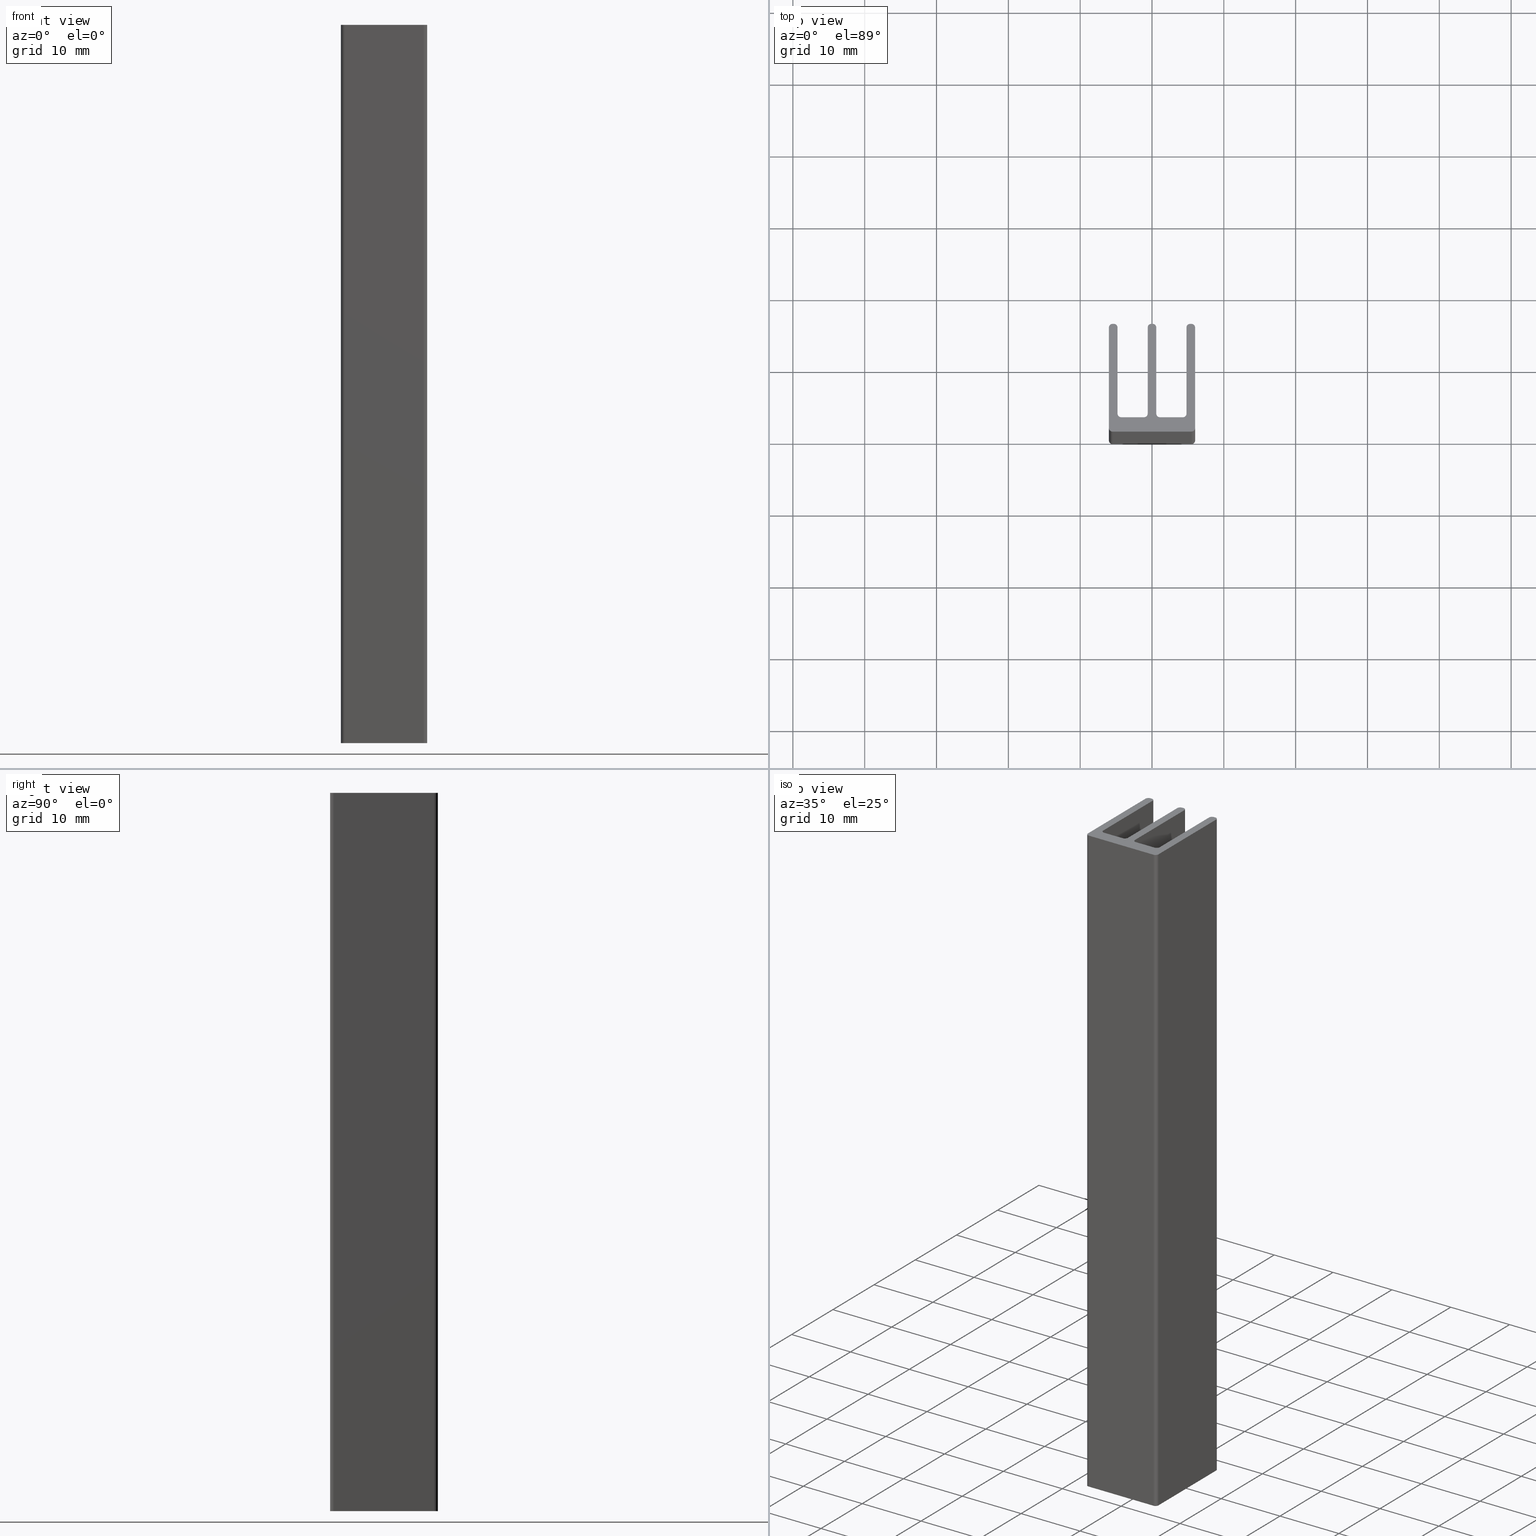
[diagram: canonical four-view strip — front | top / right | iso, engineering-drawing reading convention]
A machine part, canonical four-view strip (front | top / right | iso — engineering-drawing reading convention). The complete STEP part file that produces these views, byte-faithful:
ISO-10303-21;
HEADER;
FILE_DESCRIPTION (( 'STEP AP203' ),
    '1' );
FILE_NAME ('PR419_Alutronic.STEP',
    '2022-10-06T08:48:41',
    ( '' ),
    ( '' ),
    'SwSTEP 2.0',
    'SolidWorks 2020',
    '' );
FILE_SCHEMA (( 'CONFIG_CONTROL_DESIGN' ));
ENDSEC;

DATA;
#1 = EDGE_LOOP ( 'NONE', ( #533, #91, #743, #359 ) ) ;
#2 = AXIS2_PLACEMENT_3D ( 'NONE', #260, #244, #312 ) ;
#3 = VECTOR ( 'NONE', #94, 1000.000000000000000 ) ;
#4 = CARTESIAN_POINT ( 'NONE',  ( -4.300000000000003375, 2.500000000000000000, 100.0000000000000000 ) ) ;
#5 = AXIS2_PLACEMENT_3D ( 'NONE', #314, #630, #436 ) ;
#6 = EDGE_LOOP ( 'NONE', ( #411, #235, #107, #553 ) ) ;
#7 = AXIS2_PLACEMENT_3D ( 'NONE', #545, #610, #265 ) ;
#8 = EDGE_CURVE ( 'NONE', #638, #424, #67, .T. ) ;
#9 = DIRECTION ( 'NONE',  ( -1.000000000000000000, 0.000000000000000000, 0.000000000000000000 ) ) ;
#10 = DIRECTION ( 'NONE',  ( 1.000000000000000000, 1.445602896647339410E-16, -0.000000000000000000 ) ) ;
#11 = ORIENTED_EDGE ( 'NONE', *, *, #450, .T. ) ;
#12 = FACE_OUTER_BOUND ( 'NONE', #669, .T. ) ;
#13 = EDGE_CURVE ( 'NONE', #547, #910, #616, .T. ) ;
#14 = DIRECTION ( 'NONE',  ( -0.000000000000000000, -0.000000000000000000, -1.000000000000000000 ) ) ;
#15 = PERSON ( 'UNSPECIFIED', 'UNSPECIFIED', 'UNSPECIFIED', ('UNSPECIFIED'), ('UNSPECIFIED'), ('UNSPECIFIED') ) ;
#16 = ORIENTED_EDGE ( 'NONE', *, *, #280, .F. ) ;
#17 = VERTEX_POINT ( 'NONE', #742 ) ;
#18 = AXIS2_PLACEMENT_3D ( 'NONE', #739, #663, #685 ) ;
#19 = CIRCLE ( 'NONE', #728, 0.5000000000000004441 ) ;
#20 = LINE ( 'NONE', #567, #535 ) ;
#21 = ORIENTED_EDGE ( 'NONE', *, *, #467, .T. ) ;
#22 = ORIENTED_EDGE ( 'NONE', *, *, #835, .T. ) ;
#23 = CARTESIAN_POINT ( 'NONE',  ( -1.100000000000001643, 1.999999999999999556, 0.000000000000000000 ) ) ;
#24 = EDGE_CURVE ( 'NONE', #355, #476, #19, .T. ) ;
#25 = PRODUCT_DEFINITION ( 'UNKNOWN', '', #483, #98 ) ;
#26 = ORIENTED_EDGE ( 'NONE', *, *, #56, .F. ) ;
#27 = ORIENTED_EDGE ( 'NONE', *, *, #221, .F. ) ;
#28 = CALENDAR_DATE ( 2022, 6, 10 ) ;
#29 = DIRECTION ( 'NONE',  ( 0.000000000000000000, 0.000000000000000000, 1.000000000000000000 ) ) ;
#30 = VERTEX_POINT ( 'NONE', #321 ) ;
#31 = CARTESIAN_POINT ( 'NONE',  ( 5.300000000000002487, 15.00000000000000000, 0.000000000000000000 ) ) ;
#32 = VECTOR ( 'NONE', #393, 1000.000000000000000 ) ;
#33 = VECTOR ( 'NONE', #366, 1000.000000000000000 ) ;
#34 = LINE ( 'NONE', #584, #368 ) ;
#35 = AXIS2_PLACEMENT_3D ( 'NONE', #124, #197, #820 ) ;
#36 = ORIENTED_EDGE ( 'NONE', *, *, #334, .F. ) ;
#37 = EDGE_CURVE ( 'NONE', #287, #644, #333, .T. ) ;
#38 = CIRCLE ( 'NONE', #167, 0.5000000000000004441 ) ;
#39 = PLANE ( 'NONE',  #343 ) ;
#40 = PERSON_AND_ORGANIZATION_ROLE ( 'creator' ) ;
#41 = CARTESIAN_POINT ( 'NONE',  ( -0.6000000000000015321, 2.499999999999999556, 100.0000000000000000 ) ) ;
#42 = LINE ( 'NONE', #808, #589 ) ;
#43 = ORIENTED_EDGE ( 'NONE', *, *, #767, .T. ) ;
#44 = DIRECTION ( 'NONE',  ( -0.000000000000000000, -0.000000000000000000, -1.000000000000000000 ) ) ;
#45 = PRODUCT_RELATED_PRODUCT_CATEGORY ( 'detail', '', ( #674 ) ) ;
#46 = LINE ( 'NONE', #246, #70 ) ;
#47 = ORIENTED_EDGE ( 'NONE', *, *, #206, .F. ) ;
#48 = LINE ( 'NONE', #407, #416 ) ;
#49 = DIRECTION ( 'NONE',  ( 0.000000000000000000, -0.000000000000000000, -1.000000000000000000 ) ) ;
#50 = DIRECTION ( 'NONE',  ( 0.000000000000000000, 0.000000000000000000, 1.000000000000000000 ) ) ;
#51 = AXIS2_PLACEMENT_3D ( 'NONE', #373, #796, #159 ) ;
#52 = ORIENTED_EDGE ( 'NONE', *, *, #737, .T. ) ;
#53 = CARTESIAN_POINT ( 'NONE',  ( -1.100000000000001643, 2.499999999999999556, 100.0000000000000000 ) ) ;
#54 = AXIS2_PLACEMENT_3D ( 'NONE', #199, #55, #49 ) ;
#55 = DIRECTION ( 'NONE',  ( 0.000000000000000000, -1.000000000000000000, 0.000000000000000000 ) ) ;
#56 = EDGE_CURVE ( 'NONE', #466, #405, #185, .T. ) ;
#57 = PLANE ( 'NONE',  #308 ) ;
#58 = ADVANCED_FACE ( 'NONE', ( #470 ), #57, .T. ) ;
#59 = ORIENTED_EDGE ( 'NONE', *, *, #410, .F. ) ;
#60 = FACE_OUTER_BOUND ( 'NONE', #844, .T. ) ;
#61 = CARTESIAN_POINT ( 'NONE',  ( 4.300000000000003375, 2.000000000000000000, 100.0000000000000000 ) ) ;
#62 = CARTESIAN_POINT ( 'NONE',  ( -5.300000000000002487, 14.49999999999999822, 0.000000000000000000 ) ) ;
#63 = ORIENTED_EDGE ( 'NONE', *, *, #449, .T. ) ;
#64 = CYLINDRICAL_SURFACE ( 'NONE', #633, 0.5000000000000004441 ) ;
#65 = DIRECTION ( 'NONE',  ( 0.000000000000000000, -0.000000000000000000, -1.000000000000000000 ) ) ;
#66 = EDGE_LOOP ( 'NONE', ( #278, #59, #161, #43 ) ) ;
#67 = CIRCLE ( 'NONE', #203, 0.5000000000000002220 ) ;
#68 = EDGE_CURVE ( 'NONE', #372, #287, #833, .T. ) ;
#69 = CYLINDRICAL_SURFACE ( 'NONE', #756, 0.5000000000000004441 ) ;
#70 = VECTOR ( 'NONE', #580, 1000.000000000000000 ) ;
#71 = DIRECTION ( 'NONE',  ( 1.000000000000000000, 0.000000000000000000, 0.000000000000000000 ) ) ;
#72 = VECTOR ( 'NONE', #315, 1000.000000000000000 ) ;
#73 = VERTEX_POINT ( 'NONE', #604 ) ;
#74 = LINE ( 'NONE', #132, #643 ) ;
#75 = EDGE_CURVE ( 'NONE', #242, #857, #125, .T. ) ;
#76 = ORIENTED_EDGE ( 'NONE', *, *, #603, .F. ) ;
#77 = PERSON_AND_ORGANIZATION_ROLE ( 'design_owner' ) ;
#78 = EDGE_LOOP ( 'NONE', ( #565, #273, #323, #452 ) ) ;
#79 = ORIENTED_EDGE ( 'NONE', *, *, #835, .F. ) ;
#80 = EDGE_CURVE ( 'NONE', #340, #73, #417, .T. ) ;
#81 = LINE ( 'NONE', #645, #893 ) ;
#82 = DIRECTION ( 'NONE',  ( -0.000000000000000000, -0.000000000000000000, -1.000000000000000000 ) ) ;
#83 = CARTESIAN_POINT ( 'NONE',  ( -0.6000000000000015321, 2.499999999999999556, 100.0000000000000000 ) ) ;
#84 = VERTEX_POINT ( 'NONE', #536 ) ;
#85 = DIRECTION ( 'NONE',  ( -0.000000000000000000, -0.000000000000000000, -1.000000000000000000 ) ) ;
#86 = DIRECTION ( 'NONE',  ( -0.000000000000000000, -0.000000000000000000, -1.000000000000000000 ) ) ;
#87 = CARTESIAN_POINT ( 'NONE',  ( -5.500000000000001776, 0.000000000000000000, 100.0000000000000000 ) ) ;
#88 = ORIENTED_EDGE ( 'NONE', *, *, #221, .T. ) ;
#89 = EDGE_CURVE ( 'NONE', #398, #577, #550, .T. ) ;
#90 = LINE ( 'NONE', #184, #72 ) ;
#91 = ORIENTED_EDGE ( 'NONE', *, *, #593, .F. ) ;
#92 = AXIS2_PLACEMENT_3D ( 'NONE', #381, #241, #745 ) ;
#93 = CARTESIAN_POINT ( 'NONE',  ( -0.6000000000000013101, 14.49999999999999822, 100.0000000000000000 ) ) ;
#94 = DIRECTION ( 'NONE',  ( -0.000000000000000000, -0.000000000000000000, -1.000000000000000000 ) ) ;
#95 = FACE_OUTER_BOUND ( 'NONE', #596, .T. ) ;
#96 = VERTEX_POINT ( 'NONE', #828 ) ;
#97 = EDGE_LOOP ( 'NONE', ( #11, #486, #735, #518 ) ) ;
#98 = DESIGN_CONTEXT ( 'detailed design', #502, 'design' ) ;
#99 = DIRECTION ( 'NONE',  ( -0.000000000000000000, -0.000000000000000000, -1.000000000000000000 ) ) ;
#100 = FACE_OUTER_BOUND ( 'NONE', #437, .T. ) ;
#101 = EDGE_CURVE ( 'NONE', #541, #627, #772, .T. ) ;
#102 = VERTEX_POINT ( 'NONE', #762 ) ;
#103 = CARTESIAN_POINT ( 'NONE',  ( 0.1000000000000013933, 15.00000000000000000, 100.0000000000000000 ) ) ;
#104 = DIRECTION ( 'NONE',  ( 0.000000000000000000, 0.000000000000000000, 1.000000000000000000 ) ) ;
#105 = CLOSED_SHELL ( 'NONE', ( #245, #711, #195, #916, #236, #544, #891, #426, #458, #719, #264, #621, #921, #120, #212, #615, #778, #179, #525, #906, #776, #307, #360, #542, #58, #605 ) ) ;
#106 = AXIS2_PLACEMENT_3D ( 'NONE', #587, #99, #162 ) ;
#107 = ORIENTED_EDGE ( 'NONE', *, *, #24, .F. ) ;
#108 = VERTEX_POINT ( 'NONE', #190 ) ;
#109 = EDGE_CURVE ( 'NONE', #644, #282, #491, .T. ) ;
#110 = AXIS2_PLACEMENT_3D ( 'NONE', #779, #10, #859 ) ;
#111 = LINE ( 'NONE', #390, #250 ) ;
#112 = VECTOR ( 'NONE', #607, 1000.000000000000000 ) ;
#113 = DIRECTION ( 'NONE',  ( -0.000000000000000000, -1.000000000000000000, -0.000000000000000000 ) ) ;
#114 = ORIENTED_EDGE ( 'NONE', *, *, #109, .F. ) ;
#115 = CYLINDRICAL_SURFACE ( 'NONE', #2, 0.5000000000000004441 ) ;
#116 = LINE ( 'NONE', #395, #689 ) ;
#117 = ORIENTED_EDGE ( 'NONE', *, *, #514, .T. ) ;
#118 = ORIENTED_EDGE ( 'NONE', *, *, #24, .T. ) ;
#119 = CARTESIAN_POINT ( 'NONE',  ( 4.800000000000002487, 14.49999999999999822, 100.0000000000000000 ) ) ;
#120 = ADVANCED_FACE ( 'NONE', ( #540 ), #823, .F. ) ;
#121 = DIRECTION ( 'NONE',  ( 0.000000000000000000, 0.000000000000000000, 1.000000000000000000 ) ) ;
#122 = EDGE_CURVE ( 'NONE', #676, #367, #548, .T. ) ;
#123 = CARTESIAN_POINT ( 'NONE',  ( -4.300000000000003375, 2.000000000000000000, 100.0000000000000000 ) ) ;
#124 = CARTESIAN_POINT ( 'NONE',  ( 5.500000000000001776, 14.49999999999999822, 100.0000000000000000 ) ) ;
#125 = CIRCLE ( 'NONE', #35, 0.5000000000000004441 ) ;
#126 = ORIENTED_EDGE ( 'NONE', *, *, #496, .T. ) ;
#127 = DIRECTION ( 'NONE',  ( -1.000000000000000000, -0.000000000000000000, -0.000000000000000000 ) ) ;
#128 = ORGANIZATION ( 'UNSPECIFIED', 'UNSPECIFIED', '' ) ;
#129 = DIRECTION ( 'NONE',  ( 1.000000000000000000, 0.000000000000000000, 0.000000000000000000 ) ) ;
#130 = CARTESIAN_POINT ( 'NONE',  ( -5.500000000000001776, 14.49999999999999822, 100.0000000000000000 ) ) ;
#131 = ORIENTED_EDGE ( 'NONE', *, *, #695, .T. ) ;
#132 = CARTESIAN_POINT ( 'NONE',  ( -5.300000000000002487, 15.00000000000000000, 0.000000000000000000 ) ) ;
#133 = CARTESIAN_POINT ( 'NONE',  ( -4.300000000000003375, 2.000000000000000000, 100.0000000000000000 ) ) ;
#134 = EDGE_CURVE ( 'NONE', #857, #574, #397, .T. ) ;
#135 = VERTEX_POINT ( 'NONE', #849 ) ;
#136 = FACE_OUTER_BOUND ( 'NONE', #66, .T. ) ;
#137 = DIRECTION ( 'NONE',  ( 1.000000000000000000, 0.000000000000000000, 0.000000000000000000 ) ) ;
#138 = ORIENTED_EDGE ( 'NONE', *, *, #737, .F. ) ;
#139 = DIRECTION ( 'NONE',  ( 1.000000000000000000, 0.000000000000000000, 0.000000000000000000 ) ) ;
#140 = EDGE_CURVE ( 'NONE', #460, #215, #267, .T. ) ;
#141 = FACE_OUTER_BOUND ( 'NONE', #382, .T. ) ;
#142 = ORIENTED_EDGE ( 'NONE', *, *, #505, .T. ) ;
#143 = ORIENTED_EDGE ( 'NONE', *, *, #254, .F. ) ;
#144 = COORDINATED_UNIVERSAL_TIME_OFFSET ( 1, 0, .AHEAD. ) ;
#145 = CC_DESIGN_DATE_AND_TIME_ASSIGNMENT ( #806, #462, ( #311 ) ) ;
#146 = ORIENTED_EDGE ( 'NONE', *, *, #640, .F. ) ;
#147 = VECTOR ( 'NONE', #749, 1000.000000000000000 ) ;
#148 = AXIS2_PLACEMENT_3D ( 'NONE', #266, #611, #551 ) ;
#149 = CYLINDRICAL_SURFACE ( 'NONE', #688, 0.5000000000000004441 ) ;
#150 = AXIS2_PLACEMENT_3D ( 'NONE', #83, #498, #707 ) ;
#151 = CC_DESIGN_APPROVAL ( #480, ( #311 ) ) ;
#152 = ORIENTED_EDGE ( 'NONE', *, *, #843, .F. ) ;
#153 = CARTESIAN_POINT ( 'NONE',  ( -5.300000000000002487, 15.00000000000000000, 100.0000000000000000 ) ) ;
#154 = FACE_OUTER_BOUND ( 'NONE', #422, .T. ) ;
#155 = PLANE ( 'NONE',  #150 ) ;
#156 = DIRECTION ( 'NONE',  ( 1.807003620809174262E-17, -1.000000000000000000, 0.000000000000000000 ) ) ;
#157 = ORIENTED_EDGE ( 'NONE', *, *, #576, .F. ) ;
#158 = EDGE_CURVE ( 'NONE', #175, #599, #216, .T. ) ;
#159 = DIRECTION ( 'NONE',  ( -1.445602896647339410E-16, -1.000000000000000000, 0.000000000000000000 ) ) ;
#160 = ORIENTED_EDGE ( 'NONE', *, *, #101, .T. ) ;
#161 = ORIENTED_EDGE ( 'NONE', *, *, #122, .F. ) ;
#162 = DIRECTION ( 'NONE',  ( -1.000000000000000000, 0.000000000000000000, 0.000000000000000000 ) ) ;
#163 = EDGE_CURVE ( 'NONE', #215, #405, #207, .T. ) ;
#164 = SECURITY_CLASSIFICATION_LEVEL ( 'unclassified' ) ;
#165 = AXIS2_PLACEMENT_3D ( 'NONE', #130, #754, #350 ) ;
#166 = PLANE ( 'NONE',  #92 ) ;
#167 = AXIS2_PLACEMENT_3D ( 'NONE', #485, #915, #129 ) ;
#168 =( GEOMETRIC_REPRESENTATION_CONTEXT ( 3 ) GLOBAL_UNCERTAINTY_ASSIGNED_CONTEXT ( ( #731 ) ) GLOBAL_UNIT_ASSIGNED_CONTEXT ( ( #508, #223, #846 ) ) REPRESENTATION_CONTEXT ( 'NONE', 'WORKASPACE' ) );
#169 = ORIENTED_EDGE ( 'NONE', *, *, #352, .T. ) ;
#170 = CARTESIAN_POINT ( 'NONE',  ( -0.1000000000000013795, 15.00000000000000000, 100.0000000000000000 ) ) ;
#171 = ORIENTED_EDGE ( 'NONE', *, *, #855, .T. ) ;
#172 = COORDINATED_UNIVERSAL_TIME_OFFSET ( 1, 0, .AHEAD. ) ;
#173 = EDGE_CURVE ( 'NONE', #367, #175, #421, .T. ) ;
#174 = CARTESIAN_POINT ( 'NONE',  ( 4.300000000000003375, 2.000000000000000000, 0.000000000000000000 ) ) ;
#175 = VERTEX_POINT ( 'NONE', #339 ) ;
#176 = DIRECTION ( 'NONE',  ( -1.000000000000000000, 0.000000000000000000, 0.000000000000000000 ) ) ;
#177 = PRODUCT_DEFINITION_SHAPE ( 'NONE', 'NONE',  #25 ) ;
#178 = LINE ( 'NONE', #875, #774 ) ;
#179 = ADVANCED_FACE ( 'NONE', ( #612 ), #277, .F. ) ;
#180 = DIRECTION ( 'NONE',  ( 1.000000000000000000, 0.000000000000000000, 0.000000000000000000 ) ) ;
#181 = ORIENTED_EDGE ( 'NONE', *, *, #886, .F. ) ;
#182 = DIRECTION ( 'NONE',  ( -0.000000000000000000, -0.000000000000000000, -1.000000000000000000 ) ) ;
#183 = COORDINATED_UNIVERSAL_TIME_OFFSET ( 1, 0, .AHEAD. ) ;
#184 = CARTESIAN_POINT ( 'NONE',  ( 6.000000000000001776, 0.5000000000000000000, 0.000000000000000000 ) ) ;
#185 = CIRCLE ( 'NONE', #227, 0.5000000000000002220 ) ;
#186 = CARTESIAN_POINT ( 'NONE',  ( 5.300000000000002487, 14.49999999999999822, 0.000000000000000000 ) ) ;
#187 = ORIENTED_EDGE ( 'NONE', *, *, #8, .F. ) ;
#188 = CIRCLE ( 'NONE', #521, 0.5000000000000004441 ) ;
#189 = DIRECTION ( 'NONE',  ( 0.000000000000000000, -0.000000000000000000, -1.000000000000000000 ) ) ;
#190 = CARTESIAN_POINT ( 'NONE',  ( -5.500000000000001776, 0.000000000000000000, 0.000000000000000000 ) ) ;
#191 = DIRECTION ( 'NONE',  ( 0.000000000000000000, 0.000000000000000000, 1.000000000000000000 ) ) ;
#192 = EDGE_LOOP ( 'NONE', ( #363, #729, #249, #635, #830, #913, #52, #646, #825, #709, #198, #131, #650, #263, #142, #585, #683, #259, #724, #224, #118, #238, #346, #374 ) ) ;
#193 = EDGE_CURVE ( 'NONE', #30, #242, #492, .T. ) ;
#194 = CARTESIAN_POINT ( 'NONE',  ( 0.1000000000000014488, 14.49999999999999822, 100.0000000000000000 ) ) ;
#195 = ADVANCED_FACE ( 'NONE', ( #154 ), #636, .T. ) ;
#196 = FACE_OUTER_BOUND ( 'NONE', #853, .T. ) ;
#197 = DIRECTION ( 'NONE',  ( 0.000000000000000000, 0.000000000000000000, 1.000000000000000000 ) ) ;
#198 = ORIENTED_EDGE ( 'NONE', *, *, #158, .T. ) ;
#199 = CARTESIAN_POINT ( 'NONE',  ( -5.300000000000002487, 15.00000000000000000, 100.0000000000000000 ) ) ;
#200 = VECTOR ( 'NONE', #337, 1000.000000000000000 ) ;
#201 = DIRECTION ( 'NONE',  ( -0.000000000000000000, -0.000000000000000000, -1.000000000000000000 ) ) ;
#202 = CIRCLE ( 'NONE', #461, 0.5000000000000004441 ) ;
#203 = AXIS2_PLACEMENT_3D ( 'NONE', #682, #753, #180 ) ;
#204 = ORIENTED_EDGE ( 'NONE', *, *, #163, .T. ) ;
#205 = LINE ( 'NONE', #257, #434 ) ;
#206 = EDGE_CURVE ( 'NONE', #700, #355, #448, .T. ) ;
#207 = LINE ( 'NONE', #917, #686 ) ;
#208 = ORIENTED_EDGE ( 'NONE', *, *, #556, .F. ) ;
#209 = DIRECTION ( 'NONE',  ( 1.000000000000000000, 0.000000000000000000, 0.000000000000000000 ) ) ;
#210 = DIRECTION ( 'NONE',  ( 0.000000000000000000, 0.000000000000000000, 1.000000000000000000 ) ) ;
#211 = DIRECTION ( 'NONE',  ( -0.000000000000000000, -0.000000000000000000, -1.000000000000000000 ) ) ;
#212 = ADVANCED_FACE ( 'NONE', ( #12 ), #582, .T. ) ;
#213 = VERTEX_POINT ( 'NONE', #432 ) ;
#214 = FACE_OUTER_BOUND ( 'NONE', #619, .T. ) ;
#215 = VERTEX_POINT ( 'NONE', #93 ) ;
#216 = CIRCLE ( 'NONE', #165, 0.5000000000000004441 ) ;
#217 = CARTESIAN_POINT ( 'NONE',  ( -6.000000000000001776, 14.49999999999999822, 0.000000000000000000 ) ) ;
#218 = VECTOR ( 'NONE', #590, 1000.000000000000000 ) ;
#219 = FACE_OUTER_BOUND ( 'NONE', #523, .T. ) ;
#220 = ORIENTED_EDGE ( 'NONE', *, *, #80, .F. ) ;
#221 = EDGE_CURVE ( 'NONE', #574, #541, #503, .T. ) ;
#222 = EDGE_CURVE ( 'NONE', #622, #705, #785, .T. ) ;
#223 =( NAMED_UNIT ( * ) PLANE_ANGLE_UNIT ( ) SI_UNIT ( $, .RADIAN. ) );
#224 = ORIENTED_EDGE ( 'NONE', *, *, #206, .T. ) ;
#225 = CARTESIAN_POINT ( 'NONE',  ( 5.500000000000001776, 0.5000000000000000000, 100.0000000000000000 ) ) ;
#226 = ORIENTED_EDGE ( 'NONE', *, *, #193, .F. ) ;
#227 = AXIS2_PLACEMENT_3D ( 'NONE', #892, #531, #668 ) ;
#228 = FACE_OUTER_BOUND ( 'NONE', #354, .T. ) ;
#229 = AXIS2_PLACEMENT_3D ( 'NONE', #908, #699, #65 ) ;
#230 = CARTESIAN_POINT ( 'NONE',  ( -5.300000000000002487, 15.00000000000000000, 0.000000000000000000 ) ) ;
#231 = LINE ( 'NONE', #87, #33 ) ;
#232 = EDGE_CURVE ( 'NONE', #867, #255, #268, .T. ) ;
#233 = AXIS2_PLACEMENT_3D ( 'NONE', #827, #121, #71 ) ;
#234 = EDGE_LOOP ( 'NONE', ( #88, #181, #557, #809 ) ) ;
#235 = ORIENTED_EDGE ( 'NONE', *, *, #855, .F. ) ;
#236 = ADVANCED_FACE ( 'NONE', ( #228 ), #639, .F. ) ;
#237 = DIRECTION ( 'NONE',  ( -1.807003620809173954E-17, -1.000000000000000000, -0.000000000000000000 ) ) ;
#238 = ORIENTED_EDGE ( 'NONE', *, *, #576, .T. ) ;
#239 = FACE_OUTER_BOUND ( 'NONE', #78, .T. ) ;
#240 = CARTESIAN_POINT ( 'NONE',  ( -1.100000000000001643, 1.999999999999999556, 100.0000000000000000 ) ) ;
#241 = DIRECTION ( 'NONE',  ( 1.000000000000000000, 0.000000000000000000, 0.000000000000000000 ) ) ;
#242 = VERTEX_POINT ( 'NONE', #896 ) ;
#243 = VERTEX_POINT ( 'NONE', #477 ) ;
#244 = DIRECTION ( 'NONE',  ( -0.000000000000000000, -0.000000000000000000, -1.000000000000000000 ) ) ;
#245 = ADVANCED_FACE ( 'NONE', ( #60 ), #468, .T. ) ;
#246 = CARTESIAN_POINT ( 'NONE',  ( 0.6000000000000015321, 2.499999999999999556, 100.0000000000000000 ) ) ;
#247 = ORIENTED_EDGE ( 'NONE', *, *, #790, .F. ) ;
#248 = PLANE ( 'NONE',  #494 ) ;
#249 = ORIENTED_EDGE ( 'NONE', *, *, #140, .T. ) ;
#250 = VECTOR ( 'NONE', #127, 1000.000000000000000 ) ;
#251 = CARTESIAN_POINT ( 'NONE',  ( 5.500000000000001776, 15.00000000000000000, 0.000000000000000000 ) ) ;
#252 = EDGE_CURVE ( 'NONE', #459, #102, #812, .T. ) ;
#253 = DIRECTION ( 'NONE',  ( 0.000000000000000000, 0.000000000000000000, 1.000000000000000000 ) ) ;
#254 = EDGE_CURVE ( 'NONE', #175, #84, #901, .T. ) ;
#255 = VERTEX_POINT ( 'NONE', #670 ) ;
#256 = VECTOR ( 'NONE', #741, 1000.000000000000000 ) ;
#257 = CARTESIAN_POINT ( 'NONE',  ( 4.800000000000002487, 14.49999999999999822, 0.000000000000000000 ) ) ;
#258 = DIRECTION ( 'NONE',  ( 1.000000000000000000, 0.000000000000000000, 0.000000000000000000 ) ) ;
#259 = ORIENTED_EDGE ( 'NONE', *, *, #319, .T. ) ;
#260 = CARTESIAN_POINT ( 'NONE',  ( -5.500000000000001776, 14.49999999999999822, 100.0000000000000000 ) ) ;
#261 = CARTESIAN_POINT ( 'NONE',  ( 5.500000000000001776, 15.00000000000000000, 100.0000000000000000 ) ) ;
#262 = CARTESIAN_POINT ( 'NONE',  ( 4.300000000000003375, 2.500000000000000000, 0.000000000000000000 ) ) ;
#263 = ORIENTED_EDGE ( 'NONE', *, *, #272, .T. ) ;
#264 = ADVANCED_FACE ( 'NONE', ( #383 ), #115, .T. ) ;
#265 = DIRECTION ( 'NONE',  ( 1.000000000000000000, 0.000000000000000000, 0.000000000000000000 ) ) ;
#266 = CARTESIAN_POINT ( 'NONE',  ( -5.500000000000001776, 0.000000000000000000, 100.0000000000000000 ) ) ;
#267 = CIRCLE ( 'NONE', #788, 0.5000000000000002220 ) ;
#268 = CIRCLE ( 'NONE', #384, 0.5000000000000004441 ) ;
#269 = ORIENTED_EDGE ( 'NONE', *, *, #679, .T. ) ;
#270 = CIRCLE ( 'NONE', #233, 0.5000000000000004441 ) ;
#271 = CARTESIAN_POINT ( 'NONE',  ( 5.500000000000001776, -2.168404344971008868E-16, 100.0000000000000000 ) ) ;
#272 = EDGE_CURVE ( 'NONE', #255, #863, #538, .T. ) ;
#273 = ORIENTED_EDGE ( 'NONE', *, *, #767, .F. ) ;
#274 = DIRECTION ( 'NONE',  ( -0.000000000000000000, -0.000000000000000000, -1.000000000000000000 ) ) ;
#275 = CARTESIAN_POINT ( 'NONE',  ( -5.300000000000002487, 14.49999999999999822, 100.0000000000000000 ) ) ;
#276 = LINE ( 'NONE', #415, #404 ) ;
#277 = PLANE ( 'NONE',  #229 ) ;
#278 = ORIENTED_EDGE ( 'NONE', *, *, #13, .T. ) ;
#279 = PERSON_AND_ORGANIZATION ( #15, #128 ) ;
#280 = EDGE_CURVE ( 'NONE', #96, #547, #473, .T. ) ;
#281 = VECTOR ( 'NONE', #725, 1000.000000000000000 ) ;
#282 = VERTEX_POINT ( 'NONE', #103 ) ;
#283 = CC_DESIGN_PERSON_AND_ORGANIZATION_ASSIGNMENT ( #885, #588, ( #311 ) ) ;
#284 = AXIS2_PLACEMENT_3D ( 'NONE', #899, #527, #258 ) ;
#285 = VECTOR ( 'NONE', #898, 1000.000000000000000 ) ;
#286 = COORDINATED_UNIVERSAL_TIME_OFFSET ( 1, 0, .AHEAD. ) ;
#287 = VERTEX_POINT ( 'NONE', #524 ) ;
#288 = DIRECTION ( 'NONE',  ( -1.000000000000000000, 0.000000000000000000, 0.000000000000000000 ) ) ;
#289 = ORIENTED_EDGE ( 'NONE', *, *, #505, .F. ) ;
#290 = DIRECTION ( 'NONE',  ( 0.000000000000000000, 0.000000000000000000, 1.000000000000000000 ) ) ;
#291 = EDGE_CURVE ( 'NONE', #700, #627, #677, .T. ) ;
#292 = DIRECTION ( 'NONE',  ( -0.000000000000000000, -0.000000000000000000, -1.000000000000000000 ) ) ;
#293 = CARTESIAN_POINT ( 'NONE',  ( 6.000000000000001776, 0.5000000000000000000, 100.0000000000000000 ) ) ;
#294 = ORIENTED_EDGE ( 'NONE', *, *, #886, .T. ) ;
#295 = LINE ( 'NONE', #447, #727 ) ;
#296 = CARTESIAN_POINT ( 'NONE',  ( 0.000000000000000000, 0.000000000000000000, 0.000000000000000000 ) ) ;
#297 = CIRCLE ( 'NONE', #5, 0.5000000000000004441 ) ;
#298 = CC_DESIGN_PERSON_AND_ORGANIZATION_ASSIGNMENT ( #362, #500, ( #25 ) ) ;
#299 = FACE_OUTER_BOUND ( 'NONE', #455, .T. ) ;
#300 = ORIENTED_EDGE ( 'NONE', *, *, #681, .F. ) ;
#301 = APPROVAL_DATE_TIME ( #664, #807 ) ;
#302 = LINE ( 'NONE', #520, #256 ) ;
#303 = ORIENTED_EDGE ( 'NONE', *, *, #306, .F. ) ;
#304 = DIRECTION ( 'NONE',  ( -1.000000000000000000, 0.000000000000000000, 0.000000000000000000 ) ) ;
#305 = EDGE_LOOP ( 'NONE', ( #499, #606, #691, #769 ) ) ;
#306 = EDGE_CURVE ( 'NONE', #102, #108, #831, .T. ) ;
#307 = ADVANCED_FACE ( 'NONE', ( #318 ), #39, .F. ) ;
#308 = AXIS2_PLACEMENT_3D ( 'NONE', #746, #253, #475 ) ;
#309 = CARTESIAN_POINT ( 'NONE',  ( -6.000000000000001776, 14.49999999999999822, 100.0000000000000000 ) ) ;
#310 = ORIENTED_EDGE ( 'NONE', *, *, #661, .T. ) ;
#311 = SECURITY_CLASSIFICATION ( '', '', #164 ) ;
#312 = DIRECTION ( 'NONE',  ( -1.000000000000000000, 0.000000000000000000, 0.000000000000000000 ) ) ;
#313 = PERSON_AND_ORGANIZATION ( #15, #128 ) ;
#314 = CARTESIAN_POINT ( 'NONE',  ( 5.500000000000001776, 0.5000000000000000000, 100.0000000000000000 ) ) ;
#315 = DIRECTION ( 'NONE',  ( 0.000000000000000000, 1.000000000000000000, 0.000000000000000000 ) ) ;
#316 = CARTESIAN_POINT ( 'NONE',  ( 1.100000000000001643, 2.499999999999999556, 0.000000000000000000 ) ) ;
#317 = EDGE_LOOP ( 'NONE', ( #632, #36, #715, #388 ) ) ;
#318 = FACE_OUTER_BOUND ( 'NONE', #720, .T. ) ;
#319 = EDGE_CURVE ( 'NONE', #857, #17, #111, .T. ) ;
#320 = CARTESIAN_POINT ( 'NONE',  ( -1.100000000000001643, 1.999999999999999556, 100.0000000000000000 ) ) ;
#321 = CARTESIAN_POINT ( 'NONE',  ( 6.000000000000001776, 0.5000000000000000000, 100.0000000000000000 ) ) ;
#322 = DIRECTION ( 'NONE',  ( -0.000000000000000000, -0.000000000000000000, -1.000000000000000000 ) ) ;
#323 = ORIENTED_EDGE ( 'NONE', *, *, #341, .F. ) ;
#324 = DIRECTION ( 'NONE',  ( -0.000000000000000000, -0.000000000000000000, -1.000000000000000000 ) ) ;
#325 = CARTESIAN_POINT ( 'NONE',  ( -5.500000000000001776, 14.49999999999999822, 0.000000000000000000 ) ) ;
#326 = AXIS2_PLACEMENT_3D ( 'NONE', #123, #365, #625 ) ;
#327 = DIRECTION ( 'NONE',  ( -1.000000000000000000, 0.000000000000000000, 0.000000000000000000 ) ) ;
#328 = CIRCLE ( 'NONE', #817, 0.5000000000000004441 ) ;
#329 = ORIENTED_EDGE ( 'NONE', *, *, #514, .F. ) ;
#330 = AXIS2_PLACEMENT_3D ( 'NONE', #549, #834, #617 ) ;
#331 = CARTESIAN_POINT ( 'NONE',  ( -5.500000000000001776, 0.000000000000000000, 100.0000000000000000 ) ) ;
#332 = DIRECTION ( 'NONE',  ( -0.000000000000000000, -0.000000000000000000, -1.000000000000000000 ) ) ;
#333 = LINE ( 'NONE', #888, #402 ) ;
#334 = EDGE_CURVE ( 'NONE', #599, #459, #48, .T. ) ;
#335 = CARTESIAN_POINT ( 'NONE',  ( 5.500000000000001776, 15.00000000000000000, 100.0000000000000000 ) ) ;
#336 = ORIENTED_EDGE ( 'NONE', *, *, #586, .T. ) ;
#337 = DIRECTION ( 'NONE',  ( -0.000000000000000000, -1.000000000000000000, -0.000000000000000000 ) ) ;
#338 = DIRECTION ( 'NONE',  ( -0.000000000000000000, -0.000000000000000000, -1.000000000000000000 ) ) ;
#339 = CARTESIAN_POINT ( 'NONE',  ( -5.500000000000001776, 15.00000000000000000, 100.0000000000000000 ) ) ;
#340 = VERTEX_POINT ( 'NONE', #554 ) ;
#341 = EDGE_CURVE ( 'NONE', #135, #676, #414, .T. ) ;
#342 = CARTESIAN_POINT ( 'NONE',  ( 6.000000000000001776, 14.49999999999999822, 0.000000000000000000 ) ) ;
#343 = AXIS2_PLACEMENT_3D ( 'NONE', #592, #601, #543 ) ;
#344 = VECTOR ( 'NONE', #211, 1000.000000000000000 ) ;
#345 = AXIS2_PLACEMENT_3D ( 'NONE', #225, #86, #721 ) ;
#346 = ORIENTED_EDGE ( 'NONE', *, *, #68, .T. ) ;
#347 = VECTOR ( 'NONE', #237, 1000.000000000000000 ) ;
#348 = DIRECTION ( 'NONE',  ( 1.445602896647339410E-16, 1.000000000000000000, -0.000000000000000000 ) ) ;
#349 = DIRECTION ( 'NONE',  ( 0.000000000000000000, -1.000000000000000000, 0.000000000000000000 ) ) ;
#350 = DIRECTION ( 'NONE',  ( -1.000000000000000000, 0.000000000000000000, 0.000000000000000000 ) ) ;
#351 = ORIENTED_EDGE ( 'NONE', *, *, #394, .T. ) ;
#352 = EDGE_CURVE ( 'NONE', #784, #96, #202, .T. ) ;
#353 = CARTESIAN_POINT ( 'NONE',  ( 6.000000000000001776, 0.5000000000000000000, 100.0000000000000000 ) ) ;
#354 = EDGE_LOOP ( 'NONE', ( #877, #396, #247, #310 ) ) ;
#355 = VERTEX_POINT ( 'NONE', #558 ) ;
#356 = AXIS2_PLACEMENT_3D ( 'NONE', #316, #591, #481 ) ;
#357 = LOCAL_TIME ( 10, 48, 41.00000000000000000, #144 ) ;
#358 = DATE_TIME_ROLE ( 'creation_date' ) ;
#359 = ORIENTED_EDGE ( 'NONE', *, *, #814, .T. ) ;
#360 = ADVANCED_FACE ( 'NONE', ( #905 ), #841, .F. ) ;
#361 = CARTESIAN_POINT ( 'NONE',  ( 4.800000000000004263, 2.500000000000000000, 0.000000000000000000 ) ) ;
#362 = PERSON_AND_ORGANIZATION ( #15, #128 ) ;
#363 = ORIENTED_EDGE ( 'NONE', *, *, #109, .T. ) ;
#364 = CC_DESIGN_PERSON_AND_ORGANIZATION_ASSIGNMENT ( #444, #740, ( #483 ) ) ;
#365 = DIRECTION ( 'NONE',  ( -1.355252715606880049E-16, -1.000000000000000000, 0.000000000000000000 ) ) ;
#366 = DIRECTION ( 'NONE',  ( -0.000000000000000000, -0.000000000000000000, -1.000000000000000000 ) ) ;
#367 = VERTEX_POINT ( 'NONE', #706 ) ;
#368 = VECTOR ( 'NONE', #529, 1000.000000000000000 ) ;
#369 = CARTESIAN_POINT ( 'NONE',  ( 0.6000000000000013101, 14.49999999999999822, 100.0000000000000000 ) ) ;
#370 = VECTOR ( 'NONE', #113, 1000.000000000000000 ) ;
#371 = APPROVAL_PERSON_ORGANIZATION ( #504, #516, #786 ) ;
#372 = VERTEX_POINT ( 'NONE', #765 ) ;
#373 = CARTESIAN_POINT ( 'NONE',  ( -4.800000000000002487, 14.49999999999999822, 100.0000000000000000 ) ) ;
#374 = ORIENTED_EDGE ( 'NONE', *, *, #37, .T. ) ;
#375 = PLANE ( 'NONE',  #848 ) ;
#376 = EDGE_CURVE ( 'NONE', #910, #84, #74, .T. ) ;
#377 = EDGE_LOOP ( 'NONE', ( #413, #443, #696, #269 ) ) ;
#378 = ORIENTED_EDGE ( 'NONE', *, *, #56, .T. ) ;
#379 = CARTESIAN_POINT ( 'NONE',  ( 4.800000000000002487, 14.49999999999999822, 100.0000000000000000 ) ) ;
#380 = PERSON_AND_ORGANIZATION ( #15, #128 ) ;
#381 = CARTESIAN_POINT ( 'NONE',  ( -6.000000000000001776, 0.5000000000000000000, 100.0000000000000000 ) ) ;
#382 = EDGE_LOOP ( 'NONE', ( #441, #511, #718, #493 ) ) ;
#383 = FACE_OUTER_BOUND ( 'NONE', #317, .T. ) ;
#384 = AXIS2_PLACEMENT_3D ( 'NONE', #804, #290, #858 ) ;
#385 = CARTESIAN_POINT ( 'NONE',  ( 4.800000000000002487, 14.49999999999999822, 0.000000000000000000 ) ) ;
#386 = LOCAL_TIME ( 10, 48, 41.00000000000000000, #733 ) ;
#387 = EDGE_LOOP ( 'NONE', ( #660, #747, #572, #764 ) ) ;
#388 = ORIENTED_EDGE ( 'NONE', *, *, #254, .T. ) ;
#389 = EDGE_CURVE ( 'NONE', #242, #798, #697, .T. ) ;
#390 = CARTESIAN_POINT ( 'NONE',  ( 5.300000000000002487, 15.00000000000000000, 100.0000000000000000 ) ) ;
#391 = DIRECTION ( 'NONE',  ( 1.000000000000000000, 0.000000000000000000, -0.000000000000000000 ) ) ;
#392 = ORIENTED_EDGE ( 'NONE', *, *, #376, .T. ) ;
#393 = DIRECTION ( 'NONE',  ( 1.445602896647339410E-16, 1.000000000000000000, -0.000000000000000000 ) ) ;
#394 = EDGE_CURVE ( 'NONE', #863, #895, #81, .T. ) ;
#395 = CARTESIAN_POINT ( 'NONE',  ( 1.100000000000001643, 1.999999999999999556, 100.0000000000000000 ) ) ;
#396 = ORIENTED_EDGE ( 'NONE', *, *, #222, .F. ) ;
#397 = LINE ( 'NONE', #335, #344 ) ;
#398 = VERTEX_POINT ( 'NONE', #361 ) ;
#399 = DIRECTION ( 'NONE',  ( -0.000000000000000000, -0.000000000000000000, -1.000000000000000000 ) ) ;
#400 = CARTESIAN_POINT ( 'NONE',  ( -5.500000000000001776, 0.000000000000000000, 0.000000000000000000 ) ) ;
#401 = DIRECTION ( 'NONE',  ( -0.000000000000000000, -0.000000000000000000, -1.000000000000000000 ) ) ;
#402 = VECTOR ( 'NONE', #694, 1000.000000000000000 ) ;
#403 = DIRECTION ( 'NONE',  ( 1.000000000000000000, 0.000000000000000000, 0.000000000000000000 ) ) ;
#404 = VECTOR ( 'NONE', #332, 1000.000000000000000 ) ;
#405 = VERTEX_POINT ( 'NONE', #453 ) ;
#406 = VECTOR ( 'NONE', #338, 1000.000000000000000 ) ;
#407 = CARTESIAN_POINT ( 'NONE',  ( -6.000000000000001776, 14.49999999999999822, 100.0000000000000000 ) ) ;
#408 = CYLINDRICAL_SURFACE ( 'NONE', #760, 0.5000000000000004441 ) ;
#409 = DIRECTION ( 'NONE',  ( -0.000000000000000000, -0.000000000000000000, -1.000000000000000000 ) ) ;
#410 = EDGE_CURVE ( 'NONE', #367, #910, #872, .T. ) ;
#411 = ORIENTED_EDGE ( 'NONE', *, *, #89, .T. ) ;
#412 = LINE ( 'NONE', #620, #285 ) ;
#413 = ORIENTED_EDGE ( 'NONE', *, *, #306, .T. ) ;
#414 = LINE ( 'NONE', #701, #787 ) ;
#415 = CARTESIAN_POINT ( 'NONE',  ( -4.800000000000002487, 14.49999999999999822, 100.0000000000000000 ) ) ;
#416 = VECTOR ( 'NONE', #324, 1000.000000000000000 ) ;
#417 = CIRCLE ( 'NONE', #356, 0.5000000000000000000 ) ;
#418 = ORIENTED_EDGE ( 'NONE', *, *, #570, .F. ) ;
#419 = DIRECTION ( 'NONE',  ( -0.000000000000000000, -0.000000000000000000, -1.000000000000000000 ) ) ;
#420 = EDGE_CURVE ( 'NONE', #282, #424, #295, .T. ) ;
#421 = LINE ( 'NONE', #626, #861 ) ;
#422 = EDGE_LOOP ( 'NONE', ( #378, #581, #569, #63 ) ) ;
#423 = APPROVAL_STATUS ( 'not_yet_approved' ) ;
#424 = VERTEX_POINT ( 'NONE', #864 ) ;
#425 = CALENDAR_DATE ( 2022, 6, 10 ) ;
#426 = ADVANCED_FACE ( 'NONE', ( #239 ), #515, .F. ) ;
#427 = VECTOR ( 'NONE', #783, 1000.000000000000000 ) ;
#428 = ORIENTED_EDGE ( 'NONE', *, *, #759, .F. ) ;
#429 = AXIS2_PLACEMENT_3D ( 'NONE', #883, #201, #327 ) ;
#430 = DIRECTION ( 'NONE',  ( -0.000000000000000000, -0.000000000000000000, -1.000000000000000000 ) ) ;
#431 = AXIS2_PLACEMENT_3D ( 'NONE', #768, #717, #156 ) ;
#432 = CARTESIAN_POINT ( 'NONE',  ( -0.6000000000000015321, 2.499999999999999556, 0.000000000000000000 ) ) ;
#433 = PERSON_AND_ORGANIZATION ( #15, #128 ) ;
#434 = VECTOR ( 'NONE', #698, 1000.000000000000000 ) ;
#435 = CC_DESIGN_SECURITY_CLASSIFICATION ( #311, ( #483 ) ) ;
#436 = DIRECTION ( 'NONE',  ( 1.000000000000000000, 0.000000000000000000, 0.000000000000000000 ) ) ;
#437 = EDGE_LOOP ( 'NONE', ( #537, #513, #226, #21 ) ) ;
#438 = EDGE_CURVE ( 'NONE', #644, #638, #730, .T. ) ;
#439 = MANIFOLD_SOLID_BREP ( 'Aufsatz-Linear austragen1', #105 ) ;
#440 = FACE_OUTER_BOUND ( 'NONE', #456, .T. ) ;
#441 = ORIENTED_EDGE ( 'NONE', *, *, #478, .T. ) ;
#442 = CARTESIAN_POINT ( 'NONE',  ( 0.6000000000000013101, 14.49999999999999822, 100.0000000000000000 ) ) ;
#443 = ORIENTED_EDGE ( 'NONE', *, *, #488, .F. ) ;
#444 = PERSON_AND_ORGANIZATION ( #15, #128 ) ;
#445 = DIRECTION ( 'NONE',  ( -1.000000000000000000, 0.000000000000000000, 0.000000000000000000 ) ) ;
#446 = ORIENTED_EDGE ( 'NONE', *, *, #173, .F. ) ;
#447 = CARTESIAN_POINT ( 'NONE',  ( 0.1000000000000013933, 15.00000000000000000, 100.0000000000000000 ) ) ;
#448 = LINE ( 'NONE', #379, #618 ) ;
#449 = EDGE_CURVE ( 'NONE', #460, #466, #802, .T. ) ;
#450 = EDGE_CURVE ( 'NONE', #108, #895, #671, .T. ) ;
#451 = DIRECTION ( 'NONE',  ( 1.000000000000000000, 0.000000000000000000, 0.000000000000000000 ) ) ;
#452 = ORIENTED_EDGE ( 'NONE', *, *, #603, .T. ) ;
#453 = CARTESIAN_POINT ( 'NONE',  ( -0.6000000000000013101, 14.49999999999999822, 0.000000000000000000 ) ) ;
#454 = CARTESIAN_POINT ( 'NONE',  ( 4.300000000000003375, 2.000000000000000000, 100.0000000000000000 ) ) ;
#455 = EDGE_LOOP ( 'NONE', ( #851, #751, #428, #870 ) ) ;
#456 = EDGE_LOOP ( 'NONE', ( #169, #76, #138, #336 ) ) ;
#457 = FACE_OUTER_BOUND ( 'NONE', #838, .T. ) ;
#458 = ADVANCED_FACE ( 'NONE', ( #136 ), #69, .T. ) ;
#459 = VERTEX_POINT ( 'NONE', #217 ) ;
#460 = VERTEX_POINT ( 'NONE', #854 ) ;
#461 = AXIS2_PLACEMENT_3D ( 'NONE', #914, #274, #139 ) ;
#462 = DATE_TIME_ROLE ( 'classification_date' ) ;
#463 = CARTESIAN_POINT ( 'NONE',  ( 6.000000000000001776, 0.5000000000000000000, 0.000000000000000000 ) ) ;
#464 = VECTOR ( 'NONE', #14, 1000.000000000000000 ) ;
#465 = DIRECTION ( 'NONE',  ( -1.000000000000000000, 0.000000000000000000, 0.000000000000000000 ) ) ;
#466 = VERTEX_POINT ( 'NONE', #495 ) ;
#467 = EDGE_CURVE ( 'NONE', #30, #613, #868, .T. ) ;
#468 = CYLINDRICAL_SURFACE ( 'NONE', #629, 0.5000000000000002220 ) ;
#469 = CARTESIAN_POINT ( 'NONE',  ( -4.300000000000003375, 2.000000000000000000, 0.000000000000000000 ) ) ;
#470 = FACE_OUTER_BOUND ( 'NONE', #192, .T. ) ;
#471 = DIRECTION ( 'NONE',  ( -1.000000000000000000, 0.000000000000000000, 0.000000000000000000 ) ) ;
#472 = ORIENTED_EDGE ( 'NONE', *, *, #467, .F. ) ;
#473 = LINE ( 'NONE', #757, #32 ) ;
#474 = LINE ( 'NONE', #133, #803 ) ;
#475 = DIRECTION ( 'NONE',  ( 1.000000000000000000, 0.000000000000000000, -0.000000000000000000 ) ) ;
#476 = VERTEX_POINT ( 'NONE', #568 ) ;
#477 = CARTESIAN_POINT ( 'NONE',  ( -0.6000000000000015321, 2.499999999999999556, 100.0000000000000000 ) ) ;
#478 = EDGE_CURVE ( 'NONE', #73, #638, #723, .T. ) ;
#479 = DIRECTION ( 'NONE',  ( -1.000000000000000000, 1.355252715606879803E-16, -0.000000000000000000 ) ) ;
#480 = APPROVAL ( #744, 'UNSPECIFIED' ) ;
#481 = DIRECTION ( 'NONE',  ( -1.000000000000000000, 0.000000000000000000, 0.000000000000000000 ) ) ;
#482 = AXIS2_PLACEMENT_3D ( 'NONE', #750, #839, #137 ) ;
#483 = PRODUCT_DEFINITION_FORMATION_WITH_SPECIFIED_SOURCE ( 'ANY', '', #674, .NOT_KNOWN. ) ;
#484 = ORIENTED_EDGE ( 'NONE', *, *, #291, .F. ) ;
#485 = CARTESIAN_POINT ( 'NONE',  ( -4.300000000000003375, 2.500000000000000000, 100.0000000000000000 ) ) ;
#486 = ORIENTED_EDGE ( 'NONE', *, *, #394, .F. ) ;
#487 = LINE ( 'NONE', #770, #464 ) ;
#488 = EDGE_CURVE ( 'NONE', #255, #108, #231, .T. ) ;
#489 = ORIENTED_EDGE ( 'NONE', *, *, #478, .F. ) ;
#490 = DIRECTION ( 'NONE',  ( 0.000000000000000000, 0.000000000000000000, 1.000000000000000000 ) ) ;
#491 = CIRCLE ( 'NONE', #284, 0.5000000000000002220 ) ;
#492 = LINE ( 'NONE', #353, #791 ) ;
#493 = ORIENTED_EDGE ( 'NONE', *, *, #593, .T. ) ;
#494 = AXIS2_PLACEMENT_3D ( 'NONE', #673, #304, #29 ) ;
#495 = CARTESIAN_POINT ( 'NONE',  ( -0.1000000000000013795, 15.00000000000000000, 0.000000000000000000 ) ) ;
#496 = EDGE_CURVE ( 'NONE', #424, #466, #642, .T. ) ;
#497 = CC_DESIGN_APPROVAL ( #516, ( #25 ) ) ;
#498 = DIRECTION ( 'NONE',  ( 1.000000000000000000, -1.807003620809174262E-17, 0.000000000000000000 ) ) ;
#499 = ORIENTED_EDGE ( 'NONE', *, *, #252, .T. ) ;
#500 = PERSON_AND_ORGANIZATION_ROLE ( 'creator' ) ;
#501 = ORIENTED_EDGE ( 'NONE', *, *, #748, .F. ) ;
#502 = APPLICATION_CONTEXT ( 'configuration controlled 3d designs of mechanical parts and assemblies' ) ;
#503 = LINE ( 'NONE', #652, #507 ) ;
#504 = PERSON_AND_ORGANIZATION ( #15, #128 ) ;
#505 = EDGE_CURVE ( 'NONE', #863, #30, #297, .T. ) ;
#506 = ORIENTED_EDGE ( 'NONE', *, *, #873, .F. ) ;
#507 = VECTOR ( 'NONE', #874, 1000.000000000000000 ) ;
#508 =( LENGTH_UNIT ( ) NAMED_UNIT ( * ) SI_UNIT ( .MILLI., .METRE. ) );
#509 = LOCAL_TIME ( 10, 48, 41.00000000000000000, #172 ) ;
#510 = ORIENTED_EDGE ( 'NONE', *, *, #8, .T. ) ;
#511 = ORIENTED_EDGE ( 'NONE', *, *, #438, .F. ) ;
#512 = APPROVAL_ROLE ( '' ) ;
#513 = ORIENTED_EDGE ( 'NONE', *, *, #389, .F. ) ;
#514 = EDGE_CURVE ( 'NONE', #405, #213, #20, .T. ) ;
#515 = PLANE ( 'NONE',  #51 ) ;
#516 = APPROVAL ( #423, 'UNSPECIFIED' ) ;
#517 = DIRECTION ( 'NONE',  ( 0.000000000000000000, 0.000000000000000000, 1.000000000000000000 ) ) ;
#518 = ORIENTED_EDGE ( 'NONE', *, *, #488, .T. ) ;
#519 = CALENDAR_DATE ( 2022, 6, 10 ) ;
#520 = CARTESIAN_POINT ( 'NONE',  ( -6.000000000000001776, 0.5000000000000000000, 100.0000000000000000 ) ) ;
#521 = AXIS2_PLACEMENT_3D ( 'NONE', #325, #210, #602 ) ;
#522 = LOCAL_TIME ( 10, 48, 41.00000000000000000, #183 ) ;
#523 = EDGE_LOOP ( 'NONE', ( #117, #795, #418, #204 ) ) ;
#524 = CARTESIAN_POINT ( 'NONE',  ( 0.6000000000000015321, 2.499999999999999556, 100.0000000000000000 ) ) ;
#525 = ADVANCED_FACE ( 'NONE', ( #847 ), #647, .T. ) ;
#526 = CARTESIAN_POINT ( 'NONE',  ( 0.1000000000000014488, 14.49999999999999822, 0.000000000000000000 ) ) ;
#527 = DIRECTION ( 'NONE',  ( 0.000000000000000000, 0.000000000000000000, 1.000000000000000000 ) ) ;
#528 = APPROVAL_STATUS ( 'not_yet_approved' ) ;
#529 = DIRECTION ( 'NONE',  ( -0.000000000000000000, -0.000000000000000000, -1.000000000000000000 ) ) ;
#530 = CC_DESIGN_PERSON_AND_ORGANIZATION_ASSIGNMENT ( #380, #40, ( #483 ) ) ;
#531 = DIRECTION ( 'NONE',  ( 0.000000000000000000, 0.000000000000000000, 1.000000000000000000 ) ) ;
#532 = CARTESIAN_POINT ( 'NONE',  ( 5.300000000000002487, 14.49999999999999822, 100.0000000000000000 ) ) ;
#533 = ORIENTED_EDGE ( 'NONE', *, *, #80, .T. ) ;
#534 = DIRECTION ( 'NONE',  ( -1.000000000000000000, -1.355252715606879803E-16, 0.000000000000000000 ) ) ;
#535 = VECTOR ( 'NONE', #564, 1000.000000000000000 ) ;
#536 = CARTESIAN_POINT ( 'NONE',  ( -5.500000000000001776, 15.00000000000000000, 0.000000000000000000 ) ) ;
#537 = ORIENTED_EDGE ( 'NONE', *, *, #640, .T. ) ;
#538 = LINE ( 'NONE', #331, #147 ) ;
#539 = CARTESIAN_POINT ( 'NONE',  ( -6.000000000000001776, 0.5000000000000000000, 100.0000000000000000 ) ) ;
#540 = FACE_OUTER_BOUND ( 'NONE', #97, .T. ) ;
#541 = VERTEX_POINT ( 'NONE', #31 ) ;
#542 = ADVANCED_FACE ( 'NONE', ( #141 ), #824, .F. ) ;
#543 = DIRECTION ( 'NONE',  ( 1.000000000000000000, 1.355252715606880049E-16, 0.000000000000000000 ) ) ;
#544 = ADVANCED_FACE ( 'NONE', ( #299 ), #649, .F. ) ;
#545 = CARTESIAN_POINT ( 'NONE',  ( 5.500000000000001776, 14.49999999999999822, 0.000000000000000000 ) ) ;
#546 = DIRECTION ( 'NONE',  ( -1.000000000000000000, 0.000000000000000000, 0.000000000000000000 ) ) ;
#547 = VERTEX_POINT ( 'NONE', #665 ) ;
#548 = CIRCLE ( 'NONE', #659, 0.5000000000000004441 ) ;
#549 = CARTESIAN_POINT ( 'NONE',  ( -1.100000000000001643, 2.499999999999999556, 0.000000000000000000 ) ) ;
#550 = CIRCLE ( 'NONE', #845, 0.5000000000000004441 ) ;
#551 = DIRECTION ( 'NONE',  ( 0.000000000000000000, -0.000000000000000000, 1.000000000000000000 ) ) ;
#552 = CIRCLE ( 'NONE', #330, 0.5000000000000000000 ) ;
#553 = ORIENTED_EDGE ( 'NONE', *, *, #631, .T. ) ;
#554 = CARTESIAN_POINT ( 'NONE',  ( 1.100000000000001643, 1.999999999999999556, 0.000000000000000000 ) ) ;
#555 = FACE_OUTER_BOUND ( 'NONE', #6, .T. ) ;
#556 = EDGE_CURVE ( 'NONE', #282, #460, #42, .T. ) ;
#557 = ORIENTED_EDGE ( 'NONE', *, *, #319, .F. ) ;
#558 = CARTESIAN_POINT ( 'NONE',  ( 4.800000000000004263, 2.500000000000000000, 100.0000000000000000 ) ) ;
#559 = DIRECTION ( 'NONE',  ( -1.000000000000000000, 0.000000000000000000, 0.000000000000000000 ) ) ;
#560 = ORIENTED_EDGE ( 'NONE', *, *, #101, .F. ) ;
#561 = APPLICATION_PROTOCOL_DEFINITION ( 'international standard', 'config_control_design', 1994, #502 ) ;
#562 = AXIS2_PLACEMENT_3D ( 'NONE', #53, #810, #884 ) ;
#563 = VECTOR ( 'NONE', #651, 1000.000000000000000 ) ;
#564 = DIRECTION ( 'NONE',  ( -1.807003620809173954E-17, -1.000000000000000000, -0.000000000000000000 ) ) ;
#565 = ORIENTED_EDGE ( 'NONE', *, *, #280, .T. ) ;
#566 = CALENDAR_DATE ( 2022, 6, 10 ) ;
#567 = CARTESIAN_POINT ( 'NONE',  ( -0.6000000000000015321, 2.499999999999999556, 0.000000000000000000 ) ) ;
#568 = CARTESIAN_POINT ( 'NONE',  ( 4.300000000000003375, 2.000000000000000000, 100.0000000000000000 ) ) ;
#569 = ORIENTED_EDGE ( 'NONE', *, *, #140, .F. ) ;
#570 = EDGE_CURVE ( 'NONE', #215, #243, #667, .T. ) ;
#571 = APPLICATION_PROTOCOL_DEFINITION ( 'international standard', 'config_control_design', 1994, #678 ) ;
#572 = ORIENTED_EDGE ( 'NONE', *, *, #75, .F. ) ;
#573 = FACE_OUTER_BOUND ( 'NONE', #377, .T. ) ;
#574 = VERTEX_POINT ( 'NONE', #251 ) ;
#575 = DIRECTION ( 'NONE',  ( -0.000000000000000000, -0.000000000000000000, -1.000000000000000000 ) ) ;
#576 = EDGE_CURVE ( 'NONE', #476, #372, #869, .T. ) ;
#577 = VERTEX_POINT ( 'NONE', #174 ) ;
#578 = DIRECTION ( 'NONE',  ( -0.000000000000000000, -0.000000000000000000, -1.000000000000000000 ) ) ;
#579 = APPROVAL_ROLE ( '' ) ;
#580 = DIRECTION ( 'NONE',  ( -0.000000000000000000, -0.000000000000000000, -1.000000000000000000 ) ) ;
#581 = ORIENTED_EDGE ( 'NONE', *, *, #163, .F. ) ;
#582 = CYLINDRICAL_SURFACE ( 'NONE', #345, 0.5000000000000004441 ) ;
#583 = DATE_AND_TIME ( #28, #509 ) ;
#584 = CARTESIAN_POINT ( 'NONE',  ( -4.800000000000004263, 2.500000000000000000, 100.0000000000000000 ) ) ;
#585 = ORIENTED_EDGE ( 'NONE', *, *, #193, .T. ) ;
#586 = EDGE_CURVE ( 'NONE', #840, #784, #799, .T. ) ;
#587 = CARTESIAN_POINT ( 'NONE',  ( -0.1000000000000014488, 14.49999999999999822, 100.0000000000000000 ) ) ;
#588 = PERSON_AND_ORGANIZATION_ROLE ( 'classification_officer' ) ;
#589 = VECTOR ( 'NONE', #445, 1000.000000000000000 ) ;
#590 = DIRECTION ( 'NONE',  ( -0.000000000000000000, -0.000000000000000000, -1.000000000000000000 ) ) ;
#591 = DIRECTION ( 'NONE',  ( -0.000000000000000000, -0.000000000000000000, -1.000000000000000000 ) ) ;
#592 = CARTESIAN_POINT ( 'NONE',  ( 4.300000000000003375, 2.000000000000000000, 100.0000000000000000 ) ) ;
#593 = EDGE_CURVE ( 'NONE', #287, #73, #46, .T. ) ;
#594 = LINE ( 'NONE', #648, #370 ) ;
#595 = DIRECTION ( 'NONE',  ( -1.000000000000000000, 0.000000000000000000, 0.000000000000000000 ) ) ;
#596 = EDGE_LOOP ( 'NONE', ( #126, #821, #208, #609 ) ) ;
#597 = CARTESIAN_POINT ( 'NONE',  ( 4.800000000000002487, 14.49999999999999822, 100.0000000000000000 ) ) ;
#598 = ORIENTED_EDGE ( 'NONE', *, *, #291, .T. ) ;
#599 = VERTEX_POINT ( 'NONE', #309 ) ;
#600 = VECTOR ( 'NONE', #85, 1000.000000000000000 ) ;
#601 = DIRECTION ( 'NONE',  ( 1.355252715606880049E-16, -1.000000000000000000, 0.000000000000000000 ) ) ;
#602 = DIRECTION ( 'NONE',  ( -1.000000000000000000, 0.000000000000000000, 0.000000000000000000 ) ) ;
#603 = EDGE_CURVE ( 'NONE', #135, #96, #34, .T. ) ;
#604 = CARTESIAN_POINT ( 'NONE',  ( 0.6000000000000015321, 2.499999999999999556, 0.000000000000000000 ) ) ;
#605 = ADVANCED_FACE ( 'NONE', ( #457 ), #736, .F. ) ;
#606 = ORIENTED_EDGE ( 'NONE', *, *, #679, .F. ) ;
#607 = DIRECTION ( 'NONE',  ( -1.000000000000000000, 1.355252715606879803E-16, -0.000000000000000000 ) ) ;
#608 = CARTESIAN_POINT ( 'NONE',  ( 4.300000000000003375, 2.500000000000000000, 100.0000000000000000 ) ) ;
#609 = ORIENTED_EDGE ( 'NONE', *, *, #420, .T. ) ;
#610 = DIRECTION ( 'NONE',  ( 0.000000000000000000, 0.000000000000000000, 1.000000000000000000 ) ) ;
#611 = DIRECTION ( 'NONE',  ( 0.000000000000000000, 1.000000000000000000, 0.000000000000000000 ) ) ;
#612 = FACE_OUTER_BOUND ( 'NONE', #234, .T. ) ;
#613 = VERTEX_POINT ( 'NONE', #463 ) ;
#614 = VECTOR ( 'NONE', #399, 1000.000000000000000 ) ;
#615 = ADVANCED_FACE ( 'NONE', ( #100 ), #248, .F. ) ;
#616 = CIRCLE ( 'NONE', #714, 0.5000000000000004441 ) ;
#617 = DIRECTION ( 'NONE',  ( 1.000000000000000000, 0.000000000000000000, 0.000000000000000000 ) ) ;
#618 = VECTOR ( 'NONE', #732, 1000.000000000000000 ) ;
#619 = EDGE_LOOP ( 'NONE', ( #22, #797, #47, #598 ) ) ;
#620 = CARTESIAN_POINT ( 'NONE',  ( 4.300000000000003375, 2.000000000000000000, 0.000000000000000000 ) ) ;
#621 = ADVANCED_FACE ( 'NONE', ( #811 ), #166, .F. ) ;
#622 = VERTEX_POINT ( 'NONE', #320 ) ;
#623 = DIRECTION ( 'NONE',  ( -1.000000000000000000, 0.000000000000000000, 0.000000000000000000 ) ) ;
#624 = PLANE ( 'NONE',  #110 ) ;
#625 = DIRECTION ( 'NONE',  ( 1.000000000000000000, -1.355252715606880049E-16, 0.000000000000000000 ) ) ;
#626 = CARTESIAN_POINT ( 'NONE',  ( -5.300000000000002487, 15.00000000000000000, 100.0000000000000000 ) ) ;
#627 = VERTEX_POINT ( 'NONE', #385 ) ;
#628 = APPROVAL_DATE_TIME ( #710, #516 ) ;
#629 = AXIS2_PLACEMENT_3D ( 'NONE', #194, #44, #880 ) ;
#630 = DIRECTION ( 'NONE',  ( 0.000000000000000000, 0.000000000000000000, 1.000000000000000000 ) ) ;
#631 = EDGE_CURVE ( 'NONE', #355, #398, #178, .T. ) ;
#632 = ORIENTED_EDGE ( 'NONE', *, *, #860, .T. ) ;
#633 = AXIS2_PLACEMENT_3D ( 'NONE', #693, #766, #559 ) ;
#634 = CC_DESIGN_PERSON_AND_ORGANIZATION_ASSIGNMENT ( #279, #77, ( #674 ) ) ;
#635 = ORIENTED_EDGE ( 'NONE', *, *, #570, .T. ) ;
#636 = CYLINDRICAL_SURFACE ( 'NONE', #106, 0.5000000000000002220 ) ;
#637 = ORIENTED_EDGE ( 'NONE', *, *, #871, .F. ) ;
#638 = VERTEX_POINT ( 'NONE', #813 ) ;
#639 = CYLINDRICAL_SURFACE ( 'NONE', #562, 0.5000000000000000000 ) ;
#640 = EDGE_CURVE ( 'NONE', #613, #798, #90, .T. ) ;
#641 = CARTESIAN_POINT ( 'NONE',  ( -5.500000000000001776, 0.5000000000000000000, 100.0000000000000000 ) ) ;
#642 = LINE ( 'NONE', #866, #876 ) ;
#643 = VECTOR ( 'NONE', #623, 1000.000000000000000 ) ;
#644 = VERTEX_POINT ( 'NONE', #369 ) ;
#645 = CARTESIAN_POINT ( 'NONE',  ( 5.500000000000001776, -2.168404344971008868E-16, 100.0000000000000000 ) ) ;
#646 = ORIENTED_EDGE ( 'NONE', *, *, #341, .T. ) ;
#647 = CYLINDRICAL_SURFACE ( 'NONE', #878, 0.5000000000000004441 ) ;
#648 = CARTESIAN_POINT ( 'NONE',  ( -6.000000000000001776, 0.5000000000000000000, 100.0000000000000000 ) ) ;
#649 = PLANE ( 'NONE',  #326 ) ;
#650 = ORIENTED_EDGE ( 'NONE', *, *, #232, .T. ) ;
#651 = DIRECTION ( 'NONE',  ( -0.000000000000000000, -0.000000000000000000, -1.000000000000000000 ) ) ;
#652 = CARTESIAN_POINT ( 'NONE',  ( 5.300000000000002487, 15.00000000000000000, 0.000000000000000000 ) ) ;
#653 = CARTESIAN_POINT ( 'NONE',  ( 0.1000000000000013933, 15.00000000000000000, 100.0000000000000000 ) ) ;
#654 = ORIENTED_EDGE ( 'NONE', *, *, #352, .F. ) ;
#655 = ORIENTED_EDGE ( 'NONE', *, *, #681, .T. ) ;
#656 = APPROVAL_DATE_TIME ( #583, #480 ) ;
#657 = DIRECTION ( 'NONE',  ( -0.000000000000000000, -0.000000000000000000, -1.000000000000000000 ) ) ;
#658 = ORIENTED_EDGE ( 'NONE', *, *, #438, .T. ) ;
#659 = AXIS2_PLACEMENT_3D ( 'NONE', #837, #191, #471 ) ;
#660 = ORIENTED_EDGE ( 'NONE', *, *, #871, .T. ) ;
#661 = EDGE_CURVE ( 'NONE', #243, #213, #734, .T. ) ;
#662 = VECTOR ( 'NONE', #82, 1000.000000000000000 ) ;
#663 = DIRECTION ( 'NONE',  ( 0.000000000000000000, 0.000000000000000000, 1.000000000000000000 ) ) ;
#664 = DATE_AND_TIME ( #519, #386 ) ;
#665 = CARTESIAN_POINT ( 'NONE',  ( -4.800000000000002487, 14.49999999999999822, 0.000000000000000000 ) ) ;
#666 = APPROVAL_PERSON_ORGANIZATION ( #433, #807, #579 ) ;
#667 = LINE ( 'NONE', #890, #347 ) ;
#668 = DIRECTION ( 'NONE',  ( -1.000000000000000000, 0.000000000000000000, 0.000000000000000000 ) ) ;
#669 = EDGE_LOOP ( 'NONE', ( #655, #472, #289, #351 ) ) ;
#670 = CARTESIAN_POINT ( 'NONE',  ( -5.500000000000001776, 0.000000000000000000, 100.0000000000000000 ) ) ;
#671 = LINE ( 'NONE', #400, #800 ) ;
#672 = CALENDAR_DATE ( 2022, 6, 10 ) ;
#673 = CARTESIAN_POINT ( 'NONE',  ( 6.000000000000001776, 0.5000000000000000000, 100.0000000000000000 ) ) ;
#674 = PRODUCT ( 'PR419_Alutronic', 'PR419_Alutronic', '', ( #856 ) ) ;
#675 = DIRECTION ( 'NONE',  ( 0.000000000000000000, 0.000000000000000000, 1.000000000000000000 ) ) ;
#676 = VERTEX_POINT ( 'NONE', #882 ) ;
#677 = LINE ( 'NONE', #119, #614 ) ;
#678 = APPLICATION_CONTEXT ( 'configuration controlled 3d designs of mechanical parts and assemblies' ) ;
#679 = EDGE_CURVE ( 'NONE', #867, #102, #302, .T. ) ;
#680 = LINE ( 'NONE', #687, #112 ) ;
#681 = EDGE_CURVE ( 'NONE', #895, #613, #328, .T. ) ;
#682 = CARTESIAN_POINT ( 'NONE',  ( 0.1000000000000014488, 14.49999999999999822, 0.000000000000000000 ) ) ;
#683 = ORIENTED_EDGE ( 'NONE', *, *, #75, .T. ) ;
#684 = AXIS2_PLACEMENT_3D ( 'NONE', #782, #419, #832 ) ;
#685 = DIRECTION ( 'NONE',  ( -1.000000000000000000, 0.000000000000000000, 0.000000000000000000 ) ) ;
#686 = VECTOR ( 'NONE', #409, 1000.000000000000000 ) ;
#687 = CARTESIAN_POINT ( 'NONE',  ( -4.300000000000003375, 2.000000000000000000, 0.000000000000000000 ) ) ;
#688 = AXIS2_PLACEMENT_3D ( 'NONE', #4, #842, #288 ) ;
#689 = VECTOR ( 'NONE', #401, 1000.000000000000000 ) ;
#690 = DIRECTION ( 'NONE',  ( -0.000000000000000000, -0.000000000000000000, -1.000000000000000000 ) ) ;
#691 = ORIENTED_EDGE ( 'NONE', *, *, #695, .F. ) ;
#692 = CARTESIAN_POINT ( 'NONE',  ( -5.500000000000001776, 15.00000000000000000, 100.0000000000000000 ) ) ;
#693 = CARTESIAN_POINT ( 'NONE',  ( 5.500000000000001776, 14.49999999999999822, 100.0000000000000000 ) ) ;
#694 = DIRECTION ( 'NONE',  ( -1.807003620809173954E-17, 1.000000000000000000, 0.000000000000000000 ) ) ;
#695 = EDGE_CURVE ( 'NONE', #599, #867, #594, .T. ) ;
#696 = ORIENTED_EDGE ( 'NONE', *, *, #232, .F. ) ;
#697 = LINE ( 'NONE', #919, #909 ) ;
#698 = DIRECTION ( 'NONE',  ( 1.445602896647339410E-16, -1.000000000000000000, 0.000000000000000000 ) ) ;
#699 = DIRECTION ( 'NONE',  ( 0.000000000000000000, -1.000000000000000000, 0.000000000000000000 ) ) ;
#700 = VERTEX_POINT ( 'NONE', #597 ) ;
#701 = CARTESIAN_POINT ( 'NONE',  ( -4.800000000000002487, 14.49999999999999822, 100.0000000000000000 ) ) ;
#702 = CC_DESIGN_DATE_AND_TIME_ASSIGNMENT ( #713, #358, ( #25 ) ) ;
#703 = FACE_OUTER_BOUND ( 'NONE', #387, .T. ) ;
#704 = CARTESIAN_POINT ( 'NONE',  ( -0.1000000000000014488, 14.49999999999999822, 100.0000000000000000 ) ) ;
#705 = VERTEX_POINT ( 'NONE', #23 ) ;
#706 = CARTESIAN_POINT ( 'NONE',  ( -5.300000000000002487, 15.00000000000000000, 100.0000000000000000 ) ) ;
#707 = DIRECTION ( 'NONE',  ( 1.807003620809174262E-17, 1.000000000000000000, 0.000000000000000000 ) ) ;
#708 = DIRECTION ( 'NONE',  ( -1.000000000000000000, 0.000000000000000000, 0.000000000000000000 ) ) ;
#709 = ORIENTED_EDGE ( 'NONE', *, *, #173, .T. ) ;
#710 = DATE_AND_TIME ( #566, #761 ) ;
#711 = ADVANCED_FACE ( 'NONE', ( #95 ), #375, .F. ) ;
#712 = ORIENTED_EDGE ( 'NONE', *, *, #860, .F. ) ;
#713 = DATE_AND_TIME ( #425, #357 ) ;
#714 = AXIS2_PLACEMENT_3D ( 'NONE', #62, #50, #595 ) ;
#715 = ORIENTED_EDGE ( 'NONE', *, *, #158, .F. ) ;
#716 = CYLINDRICAL_SURFACE ( 'NONE', #850, 0.5000000000000004441 ) ;
#717 = DIRECTION ( 'NONE',  ( -1.000000000000000000, -1.807003620809174262E-17, 0.000000000000000000 ) ) ;
#718 = ORIENTED_EDGE ( 'NONE', *, *, #37, .F. ) ;
#719 = ADVANCED_FACE ( 'NONE', ( #196 ), #907, .F. ) ;
#720 = EDGE_LOOP ( 'NONE', ( #801, #889, #157, #171 ) ) ;
#721 = DIRECTION ( 'NONE',  ( -1.000000000000000000, 0.000000000000000000, 0.000000000000000000 ) ) ;
#722 = DIRECTION ( 'NONE',  ( -1.000000000000000000, 0.000000000000000000, 0.000000000000000000 ) ) ;
#723 = LINE ( 'NONE', #789, #427 ) ;
#724 = ORIENTED_EDGE ( 'NONE', *, *, #805, .T. ) ;
#725 = DIRECTION ( 'NONE',  ( -0.000000000000000000, -0.000000000000000000, -1.000000000000000000 ) ) ;
#726 = DIRECTION ( 'NONE',  ( -0.000000000000000000, -0.000000000000000000, -1.000000000000000000 ) ) ;
#727 = VECTOR ( 'NONE', #575, 1000.000000000000000 ) ;
#728 = AXIS2_PLACEMENT_3D ( 'NONE', #608, #690, #465 ) ;
#729 = ORIENTED_EDGE ( 'NONE', *, *, #556, .T. ) ;
#730 = LINE ( 'NONE', #442, #563 ) ;
#731 = UNCERTAINTY_MEASURE_WITH_UNIT (LENGTH_MEASURE( 1.000000000000000082E-05 ), #508, 'distance_accuracy_value', 'NONE');
#732 = DIRECTION ( 'NONE',  ( 1.445602896647339410E-16, -1.000000000000000000, 0.000000000000000000 ) ) ;
#733 = COORDINATED_UNIVERSAL_TIME_OFFSET ( 1, 0, .AHEAD. ) ;
#734 = LINE ( 'NONE', #41, #218 ) ;
#735 = ORIENTED_EDGE ( 'NONE', *, *, #272, .F. ) ;
#736 = PLANE ( 'NONE',  #897 ) ;
#737 = EDGE_CURVE ( 'NONE', #840, #135, #38, .T. ) ;
#738 = ORIENTED_EDGE ( 'NONE', *, *, #252, .F. ) ;
#739 = CARTESIAN_POINT ( 'NONE',  ( -5.500000000000001776, 0.5000000000000000000, 0.000000000000000000 ) ) ;
#740 = PERSON_AND_ORGANIZATION_ROLE ( 'design_supplier' ) ;
#741 = DIRECTION ( 'NONE',  ( -0.000000000000000000, -0.000000000000000000, -1.000000000000000000 ) ) ;
#742 = CARTESIAN_POINT ( 'NONE',  ( 5.300000000000002487, 15.00000000000000000, 100.0000000000000000 ) ) ;
#743 = ORIENTED_EDGE ( 'NONE', *, *, #68, .F. ) ;
#744 = APPROVAL_STATUS ( 'not_yet_approved' ) ;
#745 = DIRECTION ( 'NONE',  ( 0.000000000000000000, 0.000000000000000000, -1.000000000000000000 ) ) ;
#746 = CARTESIAN_POINT ( 'NONE',  ( 0.1000000000000014488, 14.49999999999999822, 100.0000000000000000 ) ) ;
#747 = ORIENTED_EDGE ( 'NONE', *, *, #134, .F. ) ;
#748 = EDGE_CURVE ( 'NONE', #577, #340, #412, .T. ) ;
#749 = DIRECTION ( 'NONE',  ( 1.000000000000000000, 0.000000000000000000, 0.000000000000000000 ) ) ;
#750 = CARTESIAN_POINT ( 'NONE',  ( -1.100000000000001643, 2.499999999999999556, 100.0000000000000000 ) ) ;
#751 = ORIENTED_EDGE ( 'NONE', *, *, #586, .F. ) ;
#752 = DIRECTION ( 'NONE',  ( -0.000000000000000000, -0.000000000000000000, -1.000000000000000000 ) ) ;
#753 = DIRECTION ( 'NONE',  ( 0.000000000000000000, 0.000000000000000000, 1.000000000000000000 ) ) ;
#754 = DIRECTION ( 'NONE',  ( 0.000000000000000000, 0.000000000000000000, 1.000000000000000000 ) ) ;
#755 = EDGE_LOOP ( 'NONE', ( #160, #484, #781, #294 ) ) ;
#756 = AXIS2_PLACEMENT_3D ( 'NONE', #275, #777, #9 ) ;
#757 = CARTESIAN_POINT ( 'NONE',  ( -4.800000000000002487, 14.49999999999999822, 0.000000000000000000 ) ) ;
#758 = DIRECTION ( 'NONE',  ( -1.000000000000000000, 0.000000000000000000, 0.000000000000000000 ) ) ;
#759 = EDGE_CURVE ( 'NONE', #622, #840, #474, .T. ) ;
#760 = AXIS2_PLACEMENT_3D ( 'NONE', #822, #752, #758 ) ;
#761 = LOCAL_TIME ( 10, 48, 41.00000000000000000, #286 ) ;
#762 = CARTESIAN_POINT ( 'NONE',  ( -6.000000000000001776, 0.5000000000000000000, 0.000000000000000000 ) ) ;
#763 = DIRECTION ( 'NONE',  ( -1.000000000000000000, 0.000000000000000000, 0.000000000000000000 ) ) ;
#764 = ORIENTED_EDGE ( 'NONE', *, *, #389, .T. ) ;
#765 = CARTESIAN_POINT ( 'NONE',  ( 1.100000000000001643, 1.999999999999999556, 100.0000000000000000 ) ) ;
#766 = DIRECTION ( 'NONE',  ( -0.000000000000000000, -0.000000000000000000, -1.000000000000000000 ) ) ;
#767 = EDGE_CURVE ( 'NONE', #676, #547, #276, .T. ) ;
#768 = CARTESIAN_POINT ( 'NONE',  ( 0.6000000000000015321, 2.499999999999999556, 100.0000000000000000 ) ) ;
#769 = ORIENTED_EDGE ( 'NONE', *, *, #334, .T. ) ;
#770 = CARTESIAN_POINT ( 'NONE',  ( 5.300000000000002487, 15.00000000000000000, 100.0000000000000000 ) ) ;
#771 = ORIENTED_EDGE ( 'NONE', *, *, #376, .F. ) ;
#772 = CIRCLE ( 'NONE', #894, 0.5000000000000004441 ) ;
#773 = DIRECTION ( 'NONE',  ( 1.000000000000000000, 0.000000000000000000, 0.000000000000000000 ) ) ;
#774 = VECTOR ( 'NONE', #657, 1000.000000000000000 ) ;
#775 = ORIENTED_EDGE ( 'NONE', *, *, #420, .F. ) ;
#776 = ADVANCED_FACE ( 'NONE', ( #555 ), #408, .F. ) ;
#777 = DIRECTION ( 'NONE',  ( -0.000000000000000000, -0.000000000000000000, -1.000000000000000000 ) ) ;
#778 = ADVANCED_FACE ( 'NONE', ( #703 ), #64, .T. ) ;
#779 = CARTESIAN_POINT ( 'NONE',  ( 4.800000000000002487, 14.49999999999999822, 100.0000000000000000 ) ) ;
#780 = ADVANCED_BREP_SHAPE_REPRESENTATION ( 'PR419_Alutronic', ( #439, #818 ), #168 ) ;
#781 = ORIENTED_EDGE ( 'NONE', *, *, #805, .F. ) ;
#782 = CARTESIAN_POINT ( 'NONE',  ( 1.100000000000001643, 2.499999999999999556, 100.0000000000000000 ) ) ;
#783 = DIRECTION ( 'NONE',  ( -1.807003620809173954E-17, 1.000000000000000000, 0.000000000000000000 ) ) ;
#784 = VERTEX_POINT ( 'NONE', #469 ) ;
#785 = LINE ( 'NONE', #240, #662 ) ;
#786 = APPROVAL_ROLE ( '' ) ;
#787 = VECTOR ( 'NONE', #348, 1000.000000000000000 ) ;
#788 = AXIS2_PLACEMENT_3D ( 'NONE', #704, #903, #763 ) ;
#789 = CARTESIAN_POINT ( 'NONE',  ( 0.6000000000000015321, 2.499999999999999556, 0.000000000000000000 ) ) ;
#790 = EDGE_CURVE ( 'NONE', #243, #622, #879, .T. ) ;
#791 = VECTOR ( 'NONE', #920, 1000.000000000000000 ) ;
#792 = VECTOR ( 'NONE', #534, 1000.000000000000000 ) ;
#793 = ORIENTED_EDGE ( 'NONE', *, *, #496, .F. ) ;
#794 = CIRCLE ( 'NONE', #7, 0.5000000000000004441 ) ;
#795 = ORIENTED_EDGE ( 'NONE', *, *, #661, .F. ) ;
#796 = DIRECTION ( 'NONE',  ( -1.000000000000000000, 1.445602896647339410E-16, 0.000000000000000000 ) ) ;
#797 = ORIENTED_EDGE ( 'NONE', *, *, #631, .F. ) ;
#798 = VERTEX_POINT ( 'NONE', #342 ) ;
#799 = LINE ( 'NONE', #819, #862 ) ;
#800 = VECTOR ( 'NONE', #209, 1000.000000000000000 ) ;
#801 = ORIENTED_EDGE ( 'NONE', *, *, #748, .T. ) ;
#802 = LINE ( 'NONE', #170, #281 ) ;
#803 = VECTOR ( 'NONE', #479, 1000.000000000000000 ) ;
#804 = CARTESIAN_POINT ( 'NONE',  ( -5.500000000000001776, 0.5000000000000000000, 100.0000000000000000 ) ) ;
#805 = EDGE_CURVE ( 'NONE', #17, #700, #270, .T. ) ;
#806 = DATE_AND_TIME ( #672, #522 ) ;
#807 = APPROVAL ( #528, 'UNSPECIFIED' ) ;
#808 = CARTESIAN_POINT ( 'NONE',  ( 0.1000000000000013933, 15.00000000000000000, 100.0000000000000000 ) ) ;
#809 = ORIENTED_EDGE ( 'NONE', *, *, #134, .T. ) ;
#810 = DIRECTION ( 'NONE',  ( -0.000000000000000000, -0.000000000000000000, -1.000000000000000000 ) ) ;
#811 = FACE_OUTER_BOUND ( 'NONE', #305, .T. ) ;
#812 = LINE ( 'NONE', #826, #200 ) ;
#813 = CARTESIAN_POINT ( 'NONE',  ( 0.6000000000000013101, 14.49999999999999822, 0.000000000000000000 ) ) ;
#814 = EDGE_CURVE ( 'NONE', #372, #340, #116, .T. ) ;
#815 = DIRECTION ( 'NONE',  ( -0.000000000000000000, -0.000000000000000000, -1.000000000000000000 ) ) ;
#816 = ORIENTED_EDGE ( 'NONE', *, *, #13, .F. ) ;
#817 = AXIS2_PLACEMENT_3D ( 'NONE', #887, #104, #451 ) ;
#818 = AXIS2_PLACEMENT_3D ( 'NONE', #296, #490, #773 ) ;
#819 = CARTESIAN_POINT ( 'NONE',  ( -4.300000000000003375, 2.000000000000000000, 100.0000000000000000 ) ) ;
#820 = DIRECTION ( 'NONE',  ( 1.000000000000000000, 0.000000000000000000, 0.000000000000000000 ) ) ;
#821 = ORIENTED_EDGE ( 'NONE', *, *, #449, .F. ) ;
#822 = CARTESIAN_POINT ( 'NONE',  ( 4.300000000000003375, 2.500000000000000000, 100.0000000000000000 ) ) ;
#823 = PLANE ( 'NONE',  #148 ) ;
#824 = PLANE ( 'NONE',  #431 ) ;
#825 = ORIENTED_EDGE ( 'NONE', *, *, #122, .T. ) ;
#826 = CARTESIAN_POINT ( 'NONE',  ( -6.000000000000001776, 0.5000000000000000000, 0.000000000000000000 ) ) ;
#827 = CARTESIAN_POINT ( 'NONE',  ( 5.300000000000002487, 14.49999999999999822, 100.0000000000000000 ) ) ;
#828 = CARTESIAN_POINT ( 'NONE',  ( -4.800000000000004263, 2.500000000000000000, 0.000000000000000000 ) ) ;
#829 = VECTOR ( 'NONE', #182, 1000.000000000000000 ) ;
#830 = ORIENTED_EDGE ( 'NONE', *, *, #790, .T. ) ;
#831 = CIRCLE ( 'NONE', #18, 0.5000000000000004441 ) ;
#832 = DIRECTION ( 'NONE',  ( -1.000000000000000000, 0.000000000000000000, 0.000000000000000000 ) ) ;
#833 = CIRCLE ( 'NONE', #429, 0.5000000000000000000 ) ;
#834 = DIRECTION ( 'NONE',  ( -0.000000000000000000, -0.000000000000000000, -1.000000000000000000 ) ) ;
#835 = EDGE_CURVE ( 'NONE', #627, #398, #205, .T. ) ;
#836 = APPROVAL_PERSON_ORGANIZATION ( #313, #480, #512 ) ;
#837 = CARTESIAN_POINT ( 'NONE',  ( -5.300000000000002487, 14.49999999999999822, 100.0000000000000000 ) ) ;
#838 = EDGE_LOOP ( 'NONE', ( #187, #489, #220, #501, #900, #79, #560, #27, #637, #146, #300, #904, #303, #738, #712, #771, #816, #16, #654, #152, #506, #329, #26, #793 ) ) ;
#839 = DIRECTION ( 'NONE',  ( -0.000000000000000000, -0.000000000000000000, -1.000000000000000000 ) ) ;
#840 = VERTEX_POINT ( 'NONE', #902 ) ;
#841 = CYLINDRICAL_SURFACE ( 'NONE', #684, 0.5000000000000000000 ) ;
#842 = DIRECTION ( 'NONE',  ( -0.000000000000000000, -0.000000000000000000, -1.000000000000000000 ) ) ;
#843 = EDGE_CURVE ( 'NONE', #705, #784, #680, .T. ) ;
#844 = EDGE_LOOP ( 'NONE', ( #510, #775, #114, #658 ) ) ;
#845 = AXIS2_PLACEMENT_3D ( 'NONE', #262, #815, #546 ) ;
#846 =( NAMED_UNIT ( * ) SI_UNIT ( $, .STERADIAN. ) SOLID_ANGLE_UNIT ( ) );
#847 = FACE_OUTER_BOUND ( 'NONE', #755, .T. ) ;
#848 = AXIS2_PLACEMENT_3D ( 'NONE', #653, #349, #189 ) ;
#849 = CARTESIAN_POINT ( 'NONE',  ( -4.800000000000004263, 2.500000000000000000, 100.0000000000000000 ) ) ;
#850 = AXIS2_PLACEMENT_3D ( 'NONE', #641, #292, #722 ) ;
#851 = ORIENTED_EDGE ( 'NONE', *, *, #843, .T. ) ;
#852 = CARTESIAN_POINT ( 'NONE',  ( 5.500000000000001776, -2.168404344971008868E-16, 0.000000000000000000 ) ) ;
#853 = EDGE_LOOP ( 'NONE', ( #392, #143, #446, #918 ) ) ;
#854 = CARTESIAN_POINT ( 'NONE',  ( -0.1000000000000013795, 15.00000000000000000, 100.0000000000000000 ) ) ;
#855 = EDGE_CURVE ( 'NONE', #476, #577, #911, .T. ) ;
#856 = MECHANICAL_CONTEXT ( 'NONE', #678, 'mechanical' ) ;
#857 = VERTEX_POINT ( 'NONE', #261 ) ;
#858 = DIRECTION ( 'NONE',  ( -1.000000000000000000, 0.000000000000000000, 0.000000000000000000 ) ) ;
#859 = DIRECTION ( 'NONE',  ( -1.445602896647339410E-16, 1.000000000000000000, 0.000000000000000000 ) ) ;
#860 = EDGE_CURVE ( 'NONE', #84, #459, #188, .T. ) ;
#861 = VECTOR ( 'NONE', #708, 1000.000000000000000 ) ;
#862 = VECTOR ( 'NONE', #726, 1000.000000000000000 ) ;
#863 = VERTEX_POINT ( 'NONE', #271 ) ;
#864 = CARTESIAN_POINT ( 'NONE',  ( 0.1000000000000013933, 15.00000000000000000, 0.000000000000000000 ) ) ;
#865 = SHAPE_DEFINITION_REPRESENTATION ( #177, #780 ) ;
#866 = CARTESIAN_POINT ( 'NONE',  ( 0.1000000000000013933, 15.00000000000000000, 0.000000000000000000 ) ) ;
#867 = VERTEX_POINT ( 'NONE', #539 ) ;
#868 = LINE ( 'NONE', #293, #3 ) ;
#869 = LINE ( 'NONE', #454, #792 ) ;
#870 = ORIENTED_EDGE ( 'NONE', *, *, #222, .T. ) ;
#871 = EDGE_CURVE ( 'NONE', #798, #574, #794, .T. ) ;
#872 = LINE ( 'NONE', #153, #600 ) ;
#873 = EDGE_CURVE ( 'NONE', #213, #705, #552, .T. ) ;
#874 = DIRECTION ( 'NONE',  ( -1.000000000000000000, -0.000000000000000000, -0.000000000000000000 ) ) ;
#875 = CARTESIAN_POINT ( 'NONE',  ( 4.800000000000004263, 2.500000000000000000, 100.0000000000000000 ) ) ;
#876 = VECTOR ( 'NONE', #881, 1000.000000000000000 ) ;
#877 = ORIENTED_EDGE ( 'NONE', *, *, #873, .T. ) ;
#878 = AXIS2_PLACEMENT_3D ( 'NONE', #532, #322, #176 ) ;
#879 = CIRCLE ( 'NONE', #482, 0.5000000000000000000 ) ;
#880 = DIRECTION ( 'NONE',  ( -1.000000000000000000, 0.000000000000000000, 0.000000000000000000 ) ) ;
#881 = DIRECTION ( 'NONE',  ( -1.000000000000000000, 0.000000000000000000, 0.000000000000000000 ) ) ;
#882 = CARTESIAN_POINT ( 'NONE',  ( -4.800000000000002487, 14.49999999999999822, 100.0000000000000000 ) ) ;
#883 = CARTESIAN_POINT ( 'NONE',  ( 1.100000000000001643, 2.499999999999999556, 100.0000000000000000 ) ) ;
#884 = DIRECTION ( 'NONE',  ( -1.000000000000000000, 0.000000000000000000, 0.000000000000000000 ) ) ;
#885 = PERSON_AND_ORGANIZATION ( #15, #128 ) ;
#886 = EDGE_CURVE ( 'NONE', #17, #541, #487, .T. ) ;
#887 = CARTESIAN_POINT ( 'NONE',  ( 5.500000000000001776, 0.5000000000000000000, 0.000000000000000000 ) ) ;
#888 = CARTESIAN_POINT ( 'NONE',  ( 0.6000000000000015321, 2.499999999999999556, 100.0000000000000000 ) ) ;
#889 = ORIENTED_EDGE ( 'NONE', *, *, #814, .F. ) ;
#890 = CARTESIAN_POINT ( 'NONE',  ( -0.6000000000000015321, 2.499999999999999556, 100.0000000000000000 ) ) ;
#891 = ADVANCED_FACE ( 'NONE', ( #440 ), #149, .F. ) ;
#892 = CARTESIAN_POINT ( 'NONE',  ( -0.1000000000000014488, 14.49999999999999822, 0.000000000000000000 ) ) ;
#893 = VECTOR ( 'NONE', #578, 1000.000000000000000 ) ;
#894 = AXIS2_PLACEMENT_3D ( 'NONE', #186, #675, #403 ) ;
#895 = VERTEX_POINT ( 'NONE', #852 ) ;
#896 = CARTESIAN_POINT ( 'NONE',  ( 6.000000000000001776, 14.49999999999999822, 100.0000000000000000 ) ) ;
#897 = AXIS2_PLACEMENT_3D ( 'NONE', #526, #517, #391 ) ;
#898 = DIRECTION ( 'NONE',  ( -1.000000000000000000, -1.355252715606879803E-16, 0.000000000000000000 ) ) ;
#899 = CARTESIAN_POINT ( 'NONE',  ( 0.1000000000000014488, 14.49999999999999822, 100.0000000000000000 ) ) ;
#900 = ORIENTED_EDGE ( 'NONE', *, *, #89, .F. ) ;
#901 = LINE ( 'NONE', #692, #829 ) ;
#902 = CARTESIAN_POINT ( 'NONE',  ( -4.300000000000003375, 2.000000000000000000, 100.0000000000000000 ) ) ;
#903 = DIRECTION ( 'NONE',  ( 0.000000000000000000, 0.000000000000000000, 1.000000000000000000 ) ) ;
#904 = ORIENTED_EDGE ( 'NONE', *, *, #450, .F. ) ;
#905 = FACE_OUTER_BOUND ( 'NONE', #1, .T. ) ;
#906 = ADVANCED_FACE ( 'NONE', ( #214 ), #624, .F. ) ;
#907 = PLANE ( 'NONE',  #54 ) ;
#908 = CARTESIAN_POINT ( 'NONE',  ( 5.300000000000002487, 15.00000000000000000, 100.0000000000000000 ) ) ;
#909 = VECTOR ( 'NONE', #430, 1000.000000000000000 ) ;
#910 = VERTEX_POINT ( 'NONE', #230 ) ;
#911 = LINE ( 'NONE', #61, #406 ) ;
#912 = CC_DESIGN_APPROVAL ( #807, ( #483 ) ) ;
#913 = ORIENTED_EDGE ( 'NONE', *, *, #759, .T. ) ;
#914 = CARTESIAN_POINT ( 'NONE',  ( -4.300000000000003375, 2.500000000000000000, 0.000000000000000000 ) ) ;
#915 = DIRECTION ( 'NONE',  ( -0.000000000000000000, -0.000000000000000000, -1.000000000000000000 ) ) ;
#916 = ADVANCED_FACE ( 'NONE', ( #219 ), #155, .F. ) ;
#917 = CARTESIAN_POINT ( 'NONE',  ( -0.6000000000000013101, 14.49999999999999822, 100.0000000000000000 ) ) ;
#918 = ORIENTED_EDGE ( 'NONE', *, *, #410, .T. ) ;
#919 = CARTESIAN_POINT ( 'NONE',  ( 6.000000000000001776, 14.49999999999999822, 100.0000000000000000 ) ) ;
#920 = DIRECTION ( 'NONE',  ( 0.000000000000000000, 1.000000000000000000, 0.000000000000000000 ) ) ;
#921 = ADVANCED_FACE ( 'NONE', ( #573 ), #716, .T. ) ;
ENDSEC;
END-ISO-10303-21;
